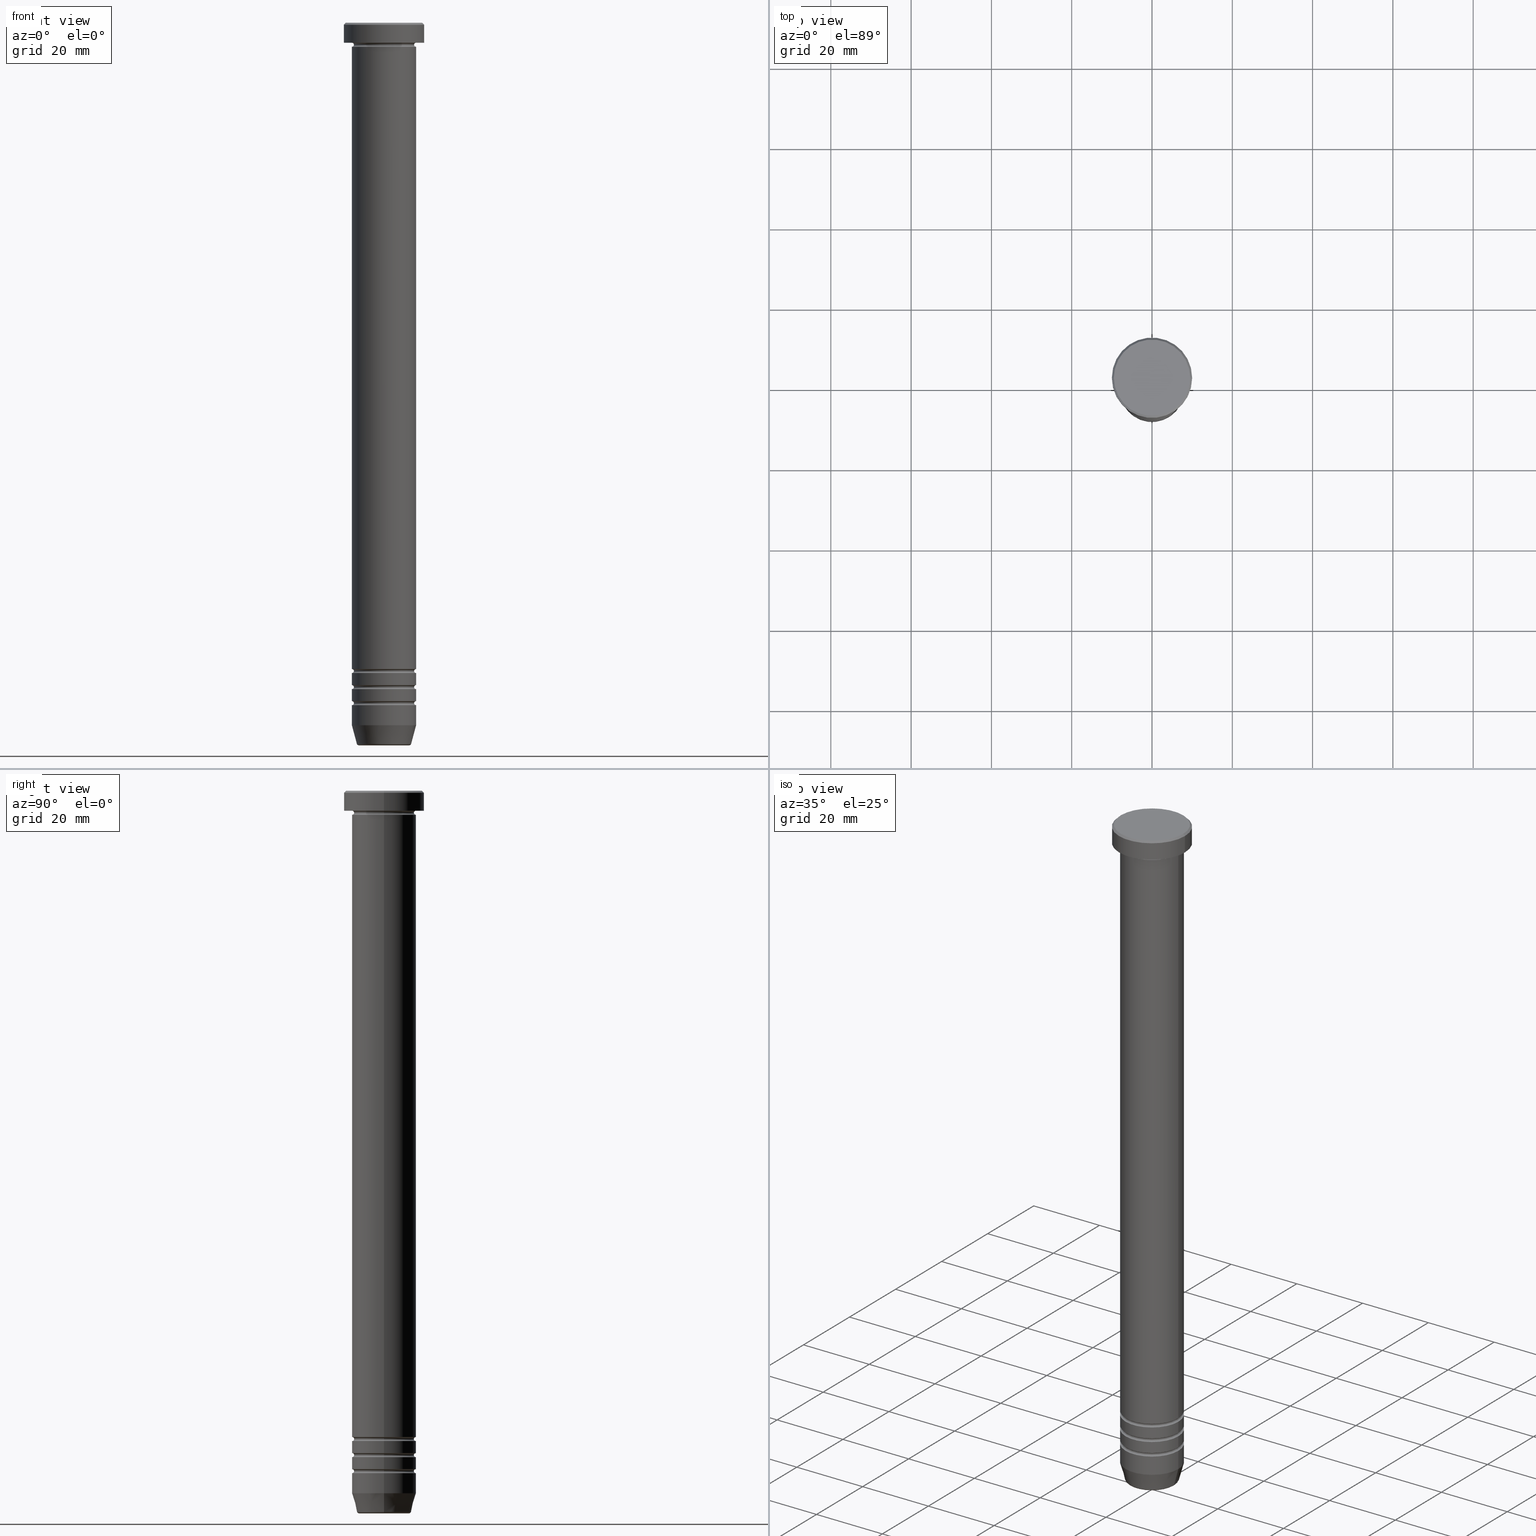
[diagram: canonical four-view strip — front | top / right | iso, engineering-drawing reading convention]
A machine part, canonical four-view strip (front | top / right | iso — engineering-drawing reading convention). The complete STEP part file that produces these views, byte-faithful:
ISO-10303-21;
HEADER;
FILE_DESCRIPTION (( 'STEP AP203' ),
    '1' );
FILE_NAME ('8cff.STEP',
    '2024-01-02T23:02:44',
    ( '' ),
    ( '' ),
    'SwSTEP 2.0',
    'SolidWorks 2019',
    '' );
FILE_SCHEMA (( 'CONFIG_CONTROL_DESIGN' ));
ENDSEC;

DATA;
#1 = ADVANCED_FACE ( 'NONE', ( #646 ), #293, .F. ) ;
#2 = CARTESIAN_POINT ( 'NONE',  ( -7.999999999999994671, 9.797174393178819741E-16, -169.5000000000000284 ) ) ;
#3 = EDGE_LOOP ( 'NONE', ( #555, #680, #749, #484 ) ) ;
#4 = ORIENTED_EDGE ( 'NONE', *, *, #354, .F. ) ;
#5 = PLANE ( 'NONE',  #608 ) ;
#6 = DIRECTION ( 'NONE',  ( -1.000000000000000000, 1.224646799147353454E-16, 0.000000000000000000 ) ) ;
#7 = CARTESIAN_POINT ( 'NONE',  ( 0.000000000000000000, 0.000000000000000000, -166.0000000000000284 ) ) ;
#8 = ADVANCED_BREP_SHAPE_REPRESENTATION ( '8cff', ( #982, #623, #127 ), #192 ) ;
#9 = ORIENTED_EDGE ( 'NONE', *, *, #174, .T. ) ;
#10 = EDGE_CURVE ( 'NONE', #385, #792, #885, .T. ) ;
#11 = CYLINDRICAL_SURFACE ( 'NONE', #40, 7.999999999999996447 ) ;
#12 = AXIS2_PLACEMENT_3D ( 'NONE', #886, #81, #720 ) ;
#13 = DIRECTION ( 'NONE',  ( 1.000000000000000000, 0.000000000000000000, 0.000000000000000000 ) ) ;
#14 = CIRCLE ( 'NONE', #724, 0.5000000000000004441 ) ;
#15 = ORIENTED_EDGE ( 'NONE', *, *, #543, .T. ) ;
#16 = LOCAL_TIME ( 0, 2, 44.00000000000000000, #782 ) ;
#17 = AXIS2_PLACEMENT_3D ( 'NONE', #583, #241, #818 ) ;
#18 = ORIENTED_EDGE ( 'NONE', *, *, #935, .T. ) ;
#19 = EDGE_CURVE ( 'NONE', #185, #112, #368, .T. ) ;
#20 = DIRECTION ( 'NONE',  ( -0.000000000000000000, -0.000000000000000000, 1.000000000000000000 ) ) ;
#21 = EDGE_LOOP ( 'NONE', ( #463, #450, #361, #718 ) ) ;
#22 = LINE ( 'NONE', #261, #150 ) ;
#23 = ORIENTED_EDGE ( 'NONE', *, *, #343, .T. ) ;
#24 = ORIENTED_EDGE ( 'NONE', *, *, #995, .F. ) ;
#25 = CARTESIAN_POINT ( 'NONE',  ( 9.500000000000005329, 1.163414459189986274E-15, 0.000000000000000000 ) ) ;
#26 = ORIENTED_EDGE ( 'NONE', *, *, #489, .T. ) ;
#27 = EDGE_LOOP ( 'NONE', ( #854, #1005, #4, #821 ) ) ;
#28 = ORIENTED_EDGE ( 'NONE', *, *, #163, .T. ) ;
#29 = CARTESIAN_POINT ( 'NONE',  ( 0.000000000000000000, 0.000000000000000000, -165.5000000000000284 ) ) ;
#30 = APPLICATION_PROTOCOL_DEFINITION ( 'international standard', 'config_control_design', 1994, #1041 ) ;
#31 = EDGE_LOOP ( 'NONE', ( #771, #686 ) ) ;
#32 = DIRECTION ( 'NONE',  ( -0.000000000000000000, -0.000000000000000000, 1.000000000000000000 ) ) ;
#33 = ORIENTED_EDGE ( 'NONE', *, *, #347, .T. ) ;
#34 = DIRECTION ( 'NONE',  ( 0.000000000000000000, 0.000000000000000000, -1.000000000000000000 ) ) ;
#35 = APPROVAL ( #856, 'NEUR�EN�' ) ;
#36 = EDGE_CURVE ( 'NONE', #954, #1056, #559, .T. ) ;
#37 = EDGE_LOOP ( 'NONE', ( #707, #582, #105, #536 ) ) ;
#38 = CARTESIAN_POINT ( 'NONE',  ( 0.000000000000000000, 0.000000000000000000, -5.500000000000000000 ) ) ;
#39 = TOROIDAL_SURFACE ( 'NONE', #470, 7.999999999999994671, 0.5000000000000000000 ) ;
#40 = AXIS2_PLACEMENT_3D ( 'NONE', #993, #258, #92 ) ;
#41 = CARTESIAN_POINT ( 'NONE',  ( -7.999999999999992895, 9.797174393178819741E-16, -169.0000000000000284 ) ) ;
#42 = DIRECTION ( 'NONE',  ( -0.000000000000000000, -0.000000000000000000, 1.000000000000000000 ) ) ;
#43 = COORDINATED_UNIVERSAL_TIME_OFFSET ( 1, 0, .AHEAD. ) ;
#44 = ORIENTED_EDGE ( 'NONE', *, *, #36, .T. ) ;
#45 = DIRECTION ( 'NONE',  ( 0.000000000000000000, 0.000000000000000000, -1.000000000000000000 ) ) ;
#46 = DIRECTION ( 'NONE',  ( 1.000000000000000000, 0.000000000000000000, 0.000000000000000000 ) ) ;
#47 = CALENDAR_DATE ( 2024, 3, 1 ) ;
#48 = ADVANCED_FACE ( 'NONE', ( #998 ), #1017, .T. ) ;
#49 = CARTESIAN_POINT ( 'NONE',  ( 8.000000000000000000, 0.000000000000000000, -5.500000000000000000 ) ) ;
#50 = DIRECTION ( 'NONE',  ( 0.000000000000000000, 0.000000000000000000, -1.000000000000000000 ) ) ;
#51 = CARTESIAN_POINT ( 'NONE',  ( 0.000000000000000000, 0.000000000000000000, -165.5000000000000284 ) ) ;
#52 = PERSON_AND_ORGANIZATION ( #505, #332 ) ;
#53 = ORIENTED_EDGE ( 'NONE', *, *, #161, .F. ) ;
#54 = AXIS2_PLACEMENT_3D ( 'NONE', #930, #202, #367 ) ;
#55 = AXIS2_PLACEMENT_3D ( 'NONE', #748, #188, #200 ) ;
#56 = ORIENTED_EDGE ( 'NONE', *, *, #876, .T. ) ;
#57 = CC_DESIGN_PERSON_AND_ORGANIZATION_ASSIGNMENT ( #125, #1043, ( #725 ) ) ;
#58 = CARTESIAN_POINT ( 'NONE',  ( -7.999999999999998224, 9.797174393178823685E-16, -165.0000000000000000 ) ) ;
#59 = ORIENTED_EDGE ( 'NONE', *, *, #702, .F. ) ;
#60 = DIRECTION ( 'NONE',  ( 1.000000000000000000, 0.000000000000000000, 0.000000000000000000 ) ) ;
#61 = PERSON_AND_ORGANIZATION_ROLE ( 'creator' ) ;
#62 = ORIENTED_EDGE ( 'NONE', *, *, #414, .T. ) ;
#63 = ORIENTED_EDGE ( 'NONE', *, *, #168, .T. ) ;
#64 = CARTESIAN_POINT ( 'NONE',  ( -7.999999999999996447, 9.797174393178821713E-16, 0.000000000000000000 ) ) ;
#65 = CARTESIAN_POINT ( 'NONE',  ( -8.000000000000000000, 9.797174393178825657E-16, -6.000000000000000000 ) ) ;
#66 = EDGE_LOOP ( 'NONE', ( #828, #836, #568, #269 ) ) ;
#67 = ORIENTED_EDGE ( 'NONE', *, *, #829, .T. ) ;
#68 = CARTESIAN_POINT ( 'NONE',  ( -8.000000000000000000, 9.797174393178825657E-16, -5.500000000000000000 ) ) ;
#69 = EDGE_CURVE ( 'NONE', #248, #298, #460, .T. ) ;
#70 = AXIS2_PLACEMENT_3D ( 'NONE', #1054, #868, #160 ) ;
#71 = AXIS2_PLACEMENT_3D ( 'NONE', #501, #1000, #822 ) ;
#72 = ADVANCED_FACE ( 'NONE', ( #546 ), #700, .T. ) ;
#73 = CARTESIAN_POINT ( 'NONE',  ( 0.000000000000000000, 0.000000000000000000, -169.0000000000000284 ) ) ;
#74 = CIRCLE ( 'NONE', #17, 8.000000000000000000 ) ;
#75 = ADVANCED_FACE ( 'NONE', ( #651 ), #610, .T. ) ;
#76 = ORIENTED_EDGE ( 'NONE', *, *, #297, .F. ) ;
#77 = ORIENTED_EDGE ( 'NONE', *, *, #614, .T. ) ;
#78 = DIRECTION ( 'NONE',  ( -0.000000000000000000, -0.000000000000000000, 1.000000000000000000 ) ) ;
#79 = DIRECTION ( 'NONE',  ( -0.000000000000000000, -0.000000000000000000, 1.000000000000000000 ) ) ;
#80 = ORIENTED_EDGE ( 'NONE', *, *, #347, .F. ) ;
#81 = DIRECTION ( 'NONE',  ( 0.000000000000000000, -1.000000000000000000, 0.000000000000000000 ) ) ;
#82 = PRODUCT_DEFINITION_SHAPE ( 'NONE', 'NONE',  #628 ) ;
#83 = ORIENTED_EDGE ( 'NONE', *, *, #383, .T. ) ;
#84 = CYLINDRICAL_SURFACE ( 'NONE', #235, 8.000000000000000000 ) ;
#85 = ORIENTED_EDGE ( 'NONE', *, *, #500, .T. ) ;
#86 = AXIS2_PLACEMENT_3D ( 'NONE', #682, #345, #209 ) ;
#87 = DIRECTION ( 'NONE',  ( -1.000000000000000000, 0.000000000000000000, -0.000000000000000000 ) ) ;
#88 = CARTESIAN_POINT ( 'NONE',  ( -6.276590543854911886, 7.686606519090462817E-16, -179.5000000000000000 ) ) ;
#89 = CIRCLE ( 'NONE', #70, 6.276590543854911886 ) ;
#90 = DIRECTION ( 'NONE',  ( -0.000000000000000000, -0.000000000000000000, 1.000000000000000000 ) ) ;
#91 = ORIENTED_EDGE ( 'NONE', *, *, #354, .T. ) ;
#92 = DIRECTION ( 'NONE',  ( 1.000000000000000000, 0.000000000000000000, 0.000000000000000000 ) ) ;
#93 = FACE_OUTER_BOUND ( 'NONE', #477, .T. ) ;
#94 = EDGE_CURVE ( 'NONE', #337, #840, #22, .T. ) ;
#95 = CARTESIAN_POINT ( 'NONE',  ( 0.000000000000000000, 0.000000000000000000, -161.5000000000000284 ) ) ;
#96 = EDGE_CURVE ( 'NONE', #551, #322, #356, .T. ) ;
#97 = ORIENTED_EDGE ( 'NONE', *, *, #260, .F. ) ;
#98 = DIRECTION ( 'NONE',  ( 1.000000000000000000, 0.000000000000000000, 0.000000000000000000 ) ) ;
#99 = DIRECTION ( 'NONE',  ( -1.000000000000000000, 0.000000000000000000, 0.000000000000000000 ) ) ;
#100 = DIRECTION ( 'NONE',  ( 0.000000000000000000, 0.000000000000000000, -1.000000000000000000 ) ) ;
#101 = CARTESIAN_POINT ( 'NONE',  ( -7.999999999999994671, 0.000000000000000000, -169.5000000000000284 ) ) ;
#102 = TOROIDAL_SURFACE ( 'NONE', #865, 7.999999999999994671, 0.5000000000000000000 ) ;
#103 = DIRECTION ( 'NONE',  ( 0.000000000000000000, 0.000000000000000000, -1.000000000000000000 ) ) ;
#104 = CC_DESIGN_APPROVAL ( #406, ( #628 ) ) ;
#105 = ORIENTED_EDGE ( 'NONE', *, *, #19, .T. ) ;
#106 = VECTOR ( 'NONE', #416, 1000.000000000000000 ) ;
#107 = AXIS2_PLACEMENT_3D ( 'NONE', #342, #1007, #666 ) ;
#108 = CARTESIAN_POINT ( 'NONE',  ( 0.000000000000000000, 0.000000000000000000, 0.000000000000000000 ) ) ;
#109 = AXIS2_PLACEMENT_3D ( 'NONE', #1015, #374, #773 ) ;
#110 = CARTESIAN_POINT ( 'NONE',  ( -7.500000000000000000, 9.491012693391985815E-16, -5.500000000000000000 ) ) ;
#111 = CARTESIAN_POINT ( 'NONE',  ( 0.000000000000000000, 0.000000000000000000, 0.000000000000000000 ) ) ;
#112 = VERTEX_POINT ( 'NONE', #587 ) ;
#113 = DIRECTION ( 'NONE',  ( -1.000000000000000000, 0.000000000000000000, 0.000000000000000000 ) ) ;
#114 = VERTEX_POINT ( 'NONE', #407 ) ;
#115 = DIRECTION ( 'NONE',  ( 0.000000000000000000, 0.000000000000000000, -1.000000000000000000 ) ) ;
#116 = ADVANCED_FACE ( 'NONE', ( #906 ), #626, .F. ) ;
#117 = ORIENTED_EDGE ( 'NONE', *, *, #791, .F. ) ;
#118 = DIRECTION ( 'NONE',  ( -0.000000000000000000, -0.000000000000000000, 1.000000000000000000 ) ) ;
#119 = ORIENTED_EDGE ( 'NONE', *, *, #156, .T. ) ;
#120 = DIRECTION ( 'NONE',  ( -0.000000000000000000, -0.000000000000000000, 1.000000000000000000 ) ) ;
#121 = CARTESIAN_POINT ( 'NONE',  ( 0.000000000000000000, 0.000000000000000000, -5.500000000000000000 ) ) ;
#122 = ORIENTED_EDGE ( 'NONE', *, *, #529, .F. ) ;
#123 = EDGE_CURVE ( 'NONE', #1056, #991, #386, .T. ) ;
#124 = CARTESIAN_POINT ( 'NONE',  ( 7.999999999999994671, 9.797174393178819741E-16, -165.5000000000000284 ) ) ;
#125 = PERSON_AND_ORGANIZATION ( #505, #332 ) ;
#126 = AXIS2_PLACEMENT_3D ( 'NONE', #652, #167, #640 ) ;
#127 = AXIS2_PLACEMENT_3D ( 'NONE', #256, #581, #1008 ) ;
#128 = TOROIDAL_SURFACE ( 'NONE', #763, 7.999999999999994671, 0.5000000000000000000 ) ;
#129 = VECTOR ( 'NONE', #440, 1000.000000000000000 ) ;
#130 = LINE ( 'NONE', #274, #809 ) ;
#131 = DIRECTION ( 'NONE',  ( -1.000000000000000000, -1.224646799147353454E-16, 0.000000000000000000 ) ) ;
#132 = DIRECTION ( 'NONE',  ( -0.000000000000000000, -0.000000000000000000, 1.000000000000000000 ) ) ;
#133 = PERSON_AND_ORGANIZATION ( #505, #332 ) ;
#134 = ORIENTED_EDGE ( 'NONE', *, *, #842, .F. ) ;
#135 = FACE_OUTER_BOUND ( 'NONE', #27, .T. ) ;
#136 = DIRECTION ( 'NONE',  ( 1.000000000000000000, 0.000000000000000000, 0.000000000000000000 ) ) ;
#137 = PRODUCT_RELATED_PRODUCT_CATEGORY ( 'detail', '', ( #240 ) ) ;
#138 = EDGE_CURVE ( 'NONE', #991, #1056, #697, .T. ) ;
#139 = VERTEX_POINT ( 'NONE', #896 ) ;
#140 = CARTESIAN_POINT ( 'NONE',  ( 0.000000000000000000, 0.000000000000000000, -169.0000000000000284 ) ) ;
#141 = CARTESIAN_POINT ( 'NONE',  ( -7.999999999999994671, 9.797174393178819741E-16, -165.5000000000000284 ) ) ;
#142 = CARTESIAN_POINT ( 'NONE',  ( 0.000000000000000000, 0.000000000000000000, -180.0000000000000000 ) ) ;
#143 = PERSON_AND_ORGANIZATION_ROLE ( 'classification_officer' ) ;
#144 = CIRCLE ( 'NONE', #54, 7.999999999999998224 ) ;
#145 = APPROVAL_PERSON_ORGANIZATION ( #220, #406, #455 ) ;
#146 = ORIENTED_EDGE ( 'NONE', *, *, #702, .T. ) ;
#147 = CARTESIAN_POINT ( 'NONE',  ( 0.000000000000000000, 0.000000000000000000, -5.500000000000000000 ) ) ;
#148 = AXIS2_PLACEMENT_3D ( 'NONE', #254, #509, #755 ) ;
#149 = CYLINDRICAL_SURFACE ( 'NONE', #878, 8.000000000000000000 ) ;
#150 = VECTOR ( 'NONE', #415, 1000.000000000000114 ) ;
#151 = DIRECTION ( 'NONE',  ( -0.000000000000000000, -0.000000000000000000, 1.000000000000000000 ) ) ;
#152 = EDGE_CURVE ( 'NONE', #112, #417, #304, .T. ) ;
#153 = ORIENTED_EDGE ( 'NONE', *, *, #476, .F. ) ;
#154 = VERTEX_POINT ( 'NONE', #746 ) ;
#155 = DIRECTION ( 'NONE',  ( 0.000000000000000000, -1.000000000000000000, 0.000000000000000000 ) ) ;
#156 = EDGE_CURVE ( 'NONE', #940, #114, #490, .T. ) ;
#157 = VERTEX_POINT ( 'NONE', #823 ) ;
#158 = AXIS2_PLACEMENT_3D ( 'NONE', #688, #1026, #635 ) ;
#159 = CIRCLE ( 'NONE', #740, 8.000000000000000000 ) ;
#160 = DIRECTION ( 'NONE',  ( 1.000000000000000000, 0.000000000000000000, 0.000000000000000000 ) ) ;
#161 = EDGE_CURVE ( 'NONE', #786, #441, #881, .T. ) ;
#162 = TOROIDAL_SURFACE ( 'NONE', #698, 7.999999999999994671, 0.5000000000000000000 ) ;
#163 = EDGE_CURVE ( 'NONE', #604, #975, #403, .T. ) ;
#164 = FACE_OUTER_BOUND ( 'NONE', #564, .T. ) ;
#165 = VERTEX_POINT ( 'NONE', #902 ) ;
#166 = DIRECTION ( 'NONE',  ( 0.000000000000000000, 0.000000000000000000, -1.000000000000000000 ) ) ;
#167 = DIRECTION ( 'NONE',  ( 0.000000000000000000, -1.000000000000000000, 0.000000000000000000 ) ) ;
#168 = EDGE_CURVE ( 'NONE', #303, #535, #316, .T. ) ;
#169 = EDGE_LOOP ( 'NONE', ( #494, #862, #380, #15 ) ) ;
#170 = CARTESIAN_POINT ( 'NONE',  ( 0.000000000000000000, 0.000000000000000000, -161.5000000000000284 ) ) ;
#171 = DIRECTION ( 'NONE',  ( -0.000000000000000000, -0.000000000000000000, 1.000000000000000000 ) ) ;
#172 = ORIENTED_EDGE ( 'NONE', *, *, #829, .F. ) ;
#173 = ORIENTED_EDGE ( 'NONE', *, *, #842, .T. ) ;
#174 = EDGE_CURVE ( 'NONE', #632, #337, #798, .T. ) ;
#175 = AXIS2_PLACEMENT_3D ( 'NONE', #247, #952, #399 ) ;
#176 = CARTESIAN_POINT ( 'NONE',  ( 0.000000000000000000, 0.000000000000000000, -5.500000000000000000 ) ) ;
#177 = AXIS2_PLACEMENT_3D ( 'NONE', #68, #306, #218 ) ;
#178 = VERTEX_POINT ( 'NONE', #323 ) ;
#179 = CARTESIAN_POINT ( 'NONE',  ( 7.999999999999996447, 0.000000000000000000, 0.000000000000000000 ) ) ;
#180 = EDGE_LOOP ( 'NONE', ( #263, #372, #565, #153 ) ) ;
#181 = CARTESIAN_POINT ( 'NONE',  ( 0.000000000000000000, 0.000000000000000000, -161.5000000000000284 ) ) ;
#182 = ADVANCED_FACE ( 'NONE', ( #93 ), #661, .F. ) ;
#183 = CARTESIAN_POINT ( 'NONE',  ( 0.000000000000000000, 0.000000000000000000, -5.000000000000000000 ) ) ;
#184 = MECHANICAL_CONTEXT ( 'NONE', #1041, 'mechanical' ) ;
#185 = VERTEX_POINT ( 'NONE', #815 ) ;
#186 = CARTESIAN_POINT ( 'NONE',  ( 0.000000000000000000, -1.734723475976807094E-15, -30.00000000000000000 ) ) ;
#187 = CARTESIAN_POINT ( 'NONE',  ( 0.000000000000000000, 1.592040838891559450E-14, -180.0000000000000000 ) ) ;
#188 = DIRECTION ( 'NONE',  ( -0.000000000000000000, -0.000000000000000000, 1.000000000000000000 ) ) ;
#189 = DIRECTION ( 'NONE',  ( -0.000000000000000000, -1.000000000000000000, -0.000000000000000000 ) ) ;
#190 = AXIS2_PLACEMENT_3D ( 'NONE', #181, #20, #1060 ) ;
#191 = DIRECTION ( 'NONE',  ( -0.000000000000000000, -0.000000000000000000, 1.000000000000000000 ) ) ;
#192 =( GEOMETRIC_REPRESENTATION_CONTEXT ( 3 ) GLOBAL_UNCERTAINTY_ASSIGNED_CONTEXT ( ( #679 ) ) GLOBAL_UNIT_ASSIGNED_CONTEXT ( ( #667, #816, #589 ) ) REPRESENTATION_CONTEXT ( 'NONE', 'WORKASPACE' ) );
#193 = EDGE_LOOP ( 'NONE', ( #534, #907, #519, #53 ) ) ;
#194 = CARTESIAN_POINT ( 'NONE',  ( 8.000000000000000000, 9.797174393178825657E-16, -4.999999999999999112 ) ) ;
#195 = CARTESIAN_POINT ( 'NONE',  ( 8.000000000000000000, 0.000000000000000000, -30.00000000000000000 ) ) ;
#196 = DIRECTION ( 'NONE',  ( 0.000000000000000000, 0.000000000000000000, -1.000000000000000000 ) ) ;
#197 = ADVANCED_FACE ( 'NONE', ( #671 ), #957, .T. ) ;
#198 = DIRECTION ( 'NONE',  ( 1.000000000000000000, 0.000000000000000000, 0.000000000000000000 ) ) ;
#199 = FACE_OUTER_BOUND ( 'NONE', #471, .T. ) ;
#200 = DIRECTION ( 'NONE',  ( -1.000000000000000000, 0.000000000000000000, 0.000000000000000000 ) ) ;
#201 = ORIENTED_EDGE ( 'NONE', *, *, #231, .T. ) ;
#202 = DIRECTION ( 'NONE',  ( -0.000000000000000000, -0.000000000000000000, 1.000000000000000000 ) ) ;
#203 = CIRCLE ( 'NONE', #335, 7.499999999999995559 ) ;
#204 = DATE_AND_TIME ( #47, #252 ) ;
#205 = CIRCLE ( 'NONE', #779, 9.500000000000005329 ) ;
#206 = AXIS2_PLACEMENT_3D ( 'NONE', #803, #171, #394 ) ;
#207 = CIRCLE ( 'NONE', #830, 6.759553456999437770 ) ;
#208 = CIRCLE ( 'NONE', #225, 8.000000000000000000 ) ;
#209 = DIRECTION ( 'NONE',  ( 1.000000000000000000, 0.000000000000000000, 0.000000000000000000 ) ) ;
#210 = CARTESIAN_POINT ( 'NONE',  ( -8.000000000000000000, 9.797174393178825657E-16, 0.000000000000000000 ) ) ;
#211 = DATE_TIME_ROLE ( 'creation_date' ) ;
#212 = ORIENTED_EDGE ( 'NONE', *, *, #366, .T. ) ;
#213 = CYLINDRICAL_SURFACE ( 'NONE', #454, 7.999999999999996447 ) ;
#214 = DIRECTION ( 'NONE',  ( -0.000000000000000000, -0.000000000000000000, 1.000000000000000000 ) ) ;
#215 = ORIENTED_EDGE ( 'NONE', *, *, #1002, .F. ) ;
#216 = ORIENTED_EDGE ( 'NONE', *, *, #174, .F. ) ;
#217 = CARTESIAN_POINT ( 'NONE',  ( -9.500000000000005329, 0.000000000000000000, 0.000000000000000000 ) ) ;
#218 = DIRECTION ( 'NONE',  ( -1.000000000000000000, 1.224646799147353454E-16, 0.000000000000000000 ) ) ;
#219 = ORIENTED_EDGE ( 'NONE', *, *, #10, .F. ) ;
#220 = PERSON_AND_ORGANIZATION ( #505, #332 ) ;
#221 = AXIS2_PLACEMENT_3D ( 'NONE', #511, #520, #598 ) ;
#222 = CC_DESIGN_DATE_AND_TIME_ASSIGNMENT ( #615, #211, ( #628 ) ) ;
#223 = CIRCLE ( 'NONE', #107, 8.000000000000000000 ) ;
#224 = EDGE_CURVE ( 'NONE', #298, #248, #223, .T. ) ;
#225 = AXIS2_PLACEMENT_3D ( 'NONE', #948, #214, #60 ) ;
#226 = DIRECTION ( 'NONE',  ( 1.000000000000000000, 0.000000000000000000, 0.000000000000000000 ) ) ;
#227 = DIRECTION ( 'NONE',  ( 0.000000000000000000, 0.000000000000000000, -1.000000000000000000 ) ) ;
#228 = CARTESIAN_POINT ( 'NONE',  ( 0.000000000000000000, 0.000000000000000000, -161.5000000000000284 ) ) ;
#229 = ORIENTED_EDGE ( 'NONE', *, *, #163, .F. ) ;
#230 = CARTESIAN_POINT ( 'NONE',  ( -10.00000000000000000, 1.224646799147353256E-15, -0.4999999999999987232 ) ) ;
#231 = EDGE_CURVE ( 'NONE', #337, #940, #207, .T. ) ;
#232 = EDGE_CURVE ( 'NONE', #630, #1056, #810, .T. ) ;
#233 = LINE ( 'NONE', #64, #711 ) ;
#234 = AXIS2_PLACEMENT_3D ( 'NONE', #563, #733, #974 ) ;
#235 = AXIS2_PLACEMENT_3D ( 'NONE', #325, #647, #1055 ) ;
#236 = DIRECTION ( 'NONE',  ( 1.000000000000000000, 0.000000000000000000, 0.000000000000000000 ) ) ;
#237 = TOROIDAL_SURFACE ( 'NONE', #355, 7.999999999999994671, 0.5000000000000000000 ) ;
#238 = EDGE_CURVE ( 'NONE', #178, #248, #275, .T. ) ;
#239 = DIRECTION ( 'NONE',  ( -0.000000000000000000, -0.000000000000000000, 1.000000000000000000 ) ) ;
#240 = PRODUCT ( '8cff', '8cff', '', ( #184 ) ) ;
#241 = DIRECTION ( 'NONE',  ( -0.000000000000000000, -0.000000000000000000, 1.000000000000000000 ) ) ;
#242 = ADVANCED_FACE ( 'NONE', ( #943 ), #1011, .T. ) ;
#243 = CARTESIAN_POINT ( 'NONE',  ( 0.000000000000000000, 0.000000000000000000, -175.0000000000000284 ) ) ;
#244 = DIRECTION ( 'NONE',  ( -0.000000000000000000, -0.000000000000000000, 1.000000000000000000 ) ) ;
#245 = CARTESIAN_POINT ( 'NONE',  ( 0.000000000000000000, 0.000000000000000000, -169.5000000000000284 ) ) ;
#246 = ORIENTED_EDGE ( 'NONE', *, *, #876, .F. ) ;
#247 = CARTESIAN_POINT ( 'NONE',  ( 0.000000000000000000, 0.000000000000000000, -0.4999999999999987232 ) ) ;
#248 = VERTEX_POINT ( 'NONE', #195 ) ;
#249 = ADVANCED_FACE ( 'NONE', ( #512 ), #128, .F. ) ;
#250 = TOROIDAL_SURFACE ( 'NONE', #330, 7.999999999999994671, 0.5000000000000000000 ) ;
#251 = DIRECTION ( 'NONE',  ( 0.000000000000000000, 0.000000000000000000, -1.000000000000000000 ) ) ;
#252 = LOCAL_TIME ( 0, 2, 44.00000000000000000, #949 ) ;
#253 = AXIS2_PLACEMENT_3D ( 'NONE', #328, #819, #99 ) ;
#254 = CARTESIAN_POINT ( 'NONE',  ( 0.000000000000000000, 0.000000000000000000, -6.000000000000000000 ) ) ;
#255 = CIRCLE ( 'NONE', #387, 7.999999999999992895 ) ;
#256 = CARTESIAN_POINT ( 'NONE',  ( 0.000000000000000000, 0.000000000000000000, 0.000000000000000000 ) ) ;
#257 = EDGE_LOOP ( 'NONE', ( #793, #715, #863, #1016 ) ) ;
#258 = DIRECTION ( 'NONE',  ( -0.000000000000000000, -0.000000000000000000, 1.000000000000000000 ) ) ;
#259 = EDGE_CURVE ( 'NONE', #954, #265, #726, .T. ) ;
#260 = EDGE_CURVE ( 'NONE', #178, #165, #422, .T. ) ;
#261 = CARTESIAN_POINT ( 'NONE',  ( -6.660254037844388186, 8.156458788954364706E-16, -180.0000000000000000 ) ) ;
#262 = LINE ( 'NONE', #25, #712 ) ;
#263 = ORIENTED_EDGE ( 'NONE', *, *, #614, .F. ) ;
#264 = CARTESIAN_POINT ( 'NONE',  ( -6.276590543854911886, 7.982336011935132188E-16, -180.0000000000000000 ) ) ;
#265 = VERTEX_POINT ( 'NONE', #286 ) ;
#266 = DIRECTION ( 'NONE',  ( -1.000000000000000000, 0.000000000000000000, 0.000000000000000000 ) ) ;
#267 = EDGE_CURVE ( 'NONE', #265, #441, #517, .T. ) ;
#268 = EDGE_CURVE ( 'NONE', #551, #392, #523, .T. ) ;
#269 = ORIENTED_EDGE ( 'NONE', *, *, #238, .F. ) ;
#270 = DIRECTION ( 'NONE',  ( -0.000000000000000000, -1.000000000000000000, -0.000000000000000000 ) ) ;
#271 = CIRCLE ( 'NONE', #351, 0.5000000000000004441 ) ;
#272 = CARTESIAN_POINT ( 'NONE',  ( 0.000000000000000000, 0.000000000000000000, -179.6294095225512422 ) ) ;
#273 = DIRECTION ( 'NONE',  ( -0.000000000000000000, -0.000000000000000000, 1.000000000000000000 ) ) ;
#274 = CARTESIAN_POINT ( 'NONE',  ( -7.999999999999996447, 9.797174393178821713E-16, 0.000000000000000000 ) ) ;
#275 = LINE ( 'NONE', #528, #728 ) ;
#276 = ORIENTED_EDGE ( 'NONE', *, *, #297, .T. ) ;
#277 = DIRECTION ( 'NONE',  ( -0.000000000000000000, -0.000000000000000000, 1.000000000000000000 ) ) ;
#278 = ORIENTED_EDGE ( 'NONE', *, *, #516, .F. ) ;
#279 = EDGE_CURVE ( 'NONE', #954, #786, #606, .T. ) ;
#280 = DIRECTION ( 'NONE',  ( -1.000000000000000000, 0.000000000000000000, 0.000000000000000000 ) ) ;
#281 = DIRECTION ( 'NONE',  ( -1.224646799147353207E-16, 1.000000000000000000, 0.000000000000000000 ) ) ;
#282 = DIRECTION ( 'NONE',  ( 1.000000000000000000, 0.000000000000000000, 0.000000000000000000 ) ) ;
#283 = DATE_AND_TIME ( #609, #472 ) ;
#284 = DIRECTION ( 'NONE',  ( -0.000000000000000000, -0.000000000000000000, 1.000000000000000000 ) ) ;
#285 = ORIENTED_EDGE ( 'NONE', *, *, #489, .F. ) ;
#286 = CARTESIAN_POINT ( 'NONE',  ( 7.999999999999998224, 0.000000000000000000, -165.0000000000000000 ) ) ;
#287 = AXIS2_PLACEMENT_3D ( 'NONE', #631, #78, #558 ) ;
#288 = DATE_AND_TIME ( #620, #486 ) ;
#289 = AXIS2_PLACEMENT_3D ( 'NONE', #2, #899, #1053 ) ;
#290 = TOROIDAL_SURFACE ( 'NONE', #656, 7.999999999999994671, 0.5000000000000000000 ) ;
#291 = EDGE_LOOP ( 'NONE', ( #346, #621, #85, #784 ) ) ;
#292 = FACE_OUTER_BOUND ( 'NONE', #21, .T. ) ;
#293 = TOROIDAL_SURFACE ( 'NONE', #769, 8.000000000000000000, 0.5000000000000000000 ) ;
#294 = CARTESIAN_POINT ( 'NONE',  ( -10.00000000000000000, 1.224646799147353256E-15, -5.000000000000000000 ) ) ;
#295 = CYLINDRICAL_SURFACE ( 'NONE', #897, 10.00000000000000000 ) ;
#296 = EDGE_CURVE ( 'NONE', #669, #185, #521, .T. ) ;
#297 = EDGE_CURVE ( 'NONE', #441, #786, #659, .T. ) ;
#298 = VERTEX_POINT ( 'NONE', #448 ) ;
#299 = ADVANCED_FACE ( 'NONE', ( #358 ), #369, .T. ) ;
#300 = EDGE_LOOP ( 'NONE', ( #28, #681 ) ) ;
#301 = DIRECTION ( 'NONE',  ( -0.000000000000000000, -0.000000000000000000, 1.000000000000000000 ) ) ;
#302 = TOROIDAL_SURFACE ( 'NONE', #221, 6.276590543854911886, 0.5000000000000000000 ) ;
#303 = VERTEX_POINT ( 'NONE', #1035 ) ;
#304 = CIRCLE ( 'NONE', #148, 8.000000000000000000 ) ;
#305 = CIRCLE ( 'NONE', #900, 0.5000000000000004441 ) ;
#306 = DIRECTION ( 'NONE',  ( 1.224646799147353207E-16, 1.000000000000000000, 0.000000000000000000 ) ) ;
#307 = EDGE_LOOP ( 'NONE', ( #33, #56, #1030, #134 ) ) ;
#308 = DIRECTION ( 'NONE',  ( -0.000000000000000000, -0.000000000000000000, 1.000000000000000000 ) ) ;
#309 = EDGE_LOOP ( 'NONE', ( #18, #77 ) ) ;
#310 = DIRECTION ( 'NONE',  ( 0.000000000000000000, 0.000000000000000000, -1.000000000000000000 ) ) ;
#311 = ORIENTED_EDGE ( 'NONE', *, *, #224, .T. ) ;
#312 = DIRECTION ( 'NONE',  ( -0.000000000000000000, -1.000000000000000000, -0.000000000000000000 ) ) ;
#313 = DIRECTION ( 'NONE',  ( 1.000000000000000000, 0.000000000000000000, 0.000000000000000000 ) ) ;
#314 = AXIS2_PLACEMENT_3D ( 'NONE', #1006, #687, #924 ) ;
#315 = AXIS2_PLACEMENT_3D ( 'NONE', #759, #600, #825 ) ;
#316 = CIRCLE ( 'NONE', #642, 7.500000000000000000 ) ;
#317 = FACE_OUTER_BOUND ( 'NONE', #616, .T. ) ;
#318 = CARTESIAN_POINT ( 'NONE',  ( 7.499999999999995559, 0.000000000000000000, -169.5000000000000284 ) ) ;
#319 = ORIENTED_EDGE ( 'NONE', *, *, #268, .F. ) ;
#320 = ORIENTED_EDGE ( 'NONE', *, *, #719, .T. ) ;
#321 = DIRECTION ( 'NONE',  ( 1.000000000000000000, 0.000000000000000000, 0.000000000000000000 ) ) ;
#322 = VERTEX_POINT ( 'NONE', #294 ) ;
#323 = CARTESIAN_POINT ( 'NONE',  ( 7.999999999999992895, 0.000000000000000000, -161.0000000000000284 ) ) ;
#324 = EDGE_CURVE ( 'NONE', #185, #669, #208, .T. ) ;
#325 = CARTESIAN_POINT ( 'NONE',  ( 0.000000000000000000, 0.000000000000000000, 0.000000000000000000 ) ) ;
#326 = ADVANCED_FACE ( 'NONE', ( #925 ), #162, .F. ) ;
#327 = DIRECTION ( 'NONE',  ( 0.000000000000000000, 0.000000000000000000, -1.000000000000000000 ) ) ;
#328 = CARTESIAN_POINT ( 'NONE',  ( 0.000000000000000000, 0.000000000000000000, -5.000000000000000000 ) ) ;
#329 = AXIS2_PLACEMENT_3D ( 'NONE', #953, #301, #236 ) ;
#330 = AXIS2_PLACEMENT_3D ( 'NONE', #946, #32, #198 ) ;
#331 = DIRECTION ( 'NONE',  ( 0.000000000000000000, 0.000000000000000000, -1.000000000000000000 ) ) ;
#332 = ORGANIZATION ( 'NEUR�EN�', 'NEUR�EN�', '' ) ;
#333 = AXIS2_PLACEMENT_3D ( 'NONE', #142, #619, #776 ) ;
#334 = CARTESIAN_POINT ( 'NONE',  ( 6.660254037844388186, 0.000000000000000000, -180.0000000000000000 ) ) ;
#335 = AXIS2_PLACEMENT_3D ( 'NONE', #466, #790, #388 ) ;
#336 = ADVANCED_FACE ( 'NONE', ( #199 ), #627, .F. ) ;
#337 = VERTEX_POINT ( 'NONE', #851 ) ;
#338 = EDGE_CURVE ( 'NONE', #401, #991, #542, .T. ) ;
#339 = FACE_OUTER_BOUND ( 'NONE', #845, .T. ) ;
#340 = ADVANCED_FACE ( 'NONE', ( #602 ), #364, .T. ) ;
#341 = EDGE_CURVE ( 'NONE', #962, #632, #89, .T. ) ;
#342 = CARTESIAN_POINT ( 'NONE',  ( 0.000000000000000000, 0.000000000000000000, -30.00000000000000000 ) ) ;
#343 = EDGE_CURVE ( 'NONE', #178, #154, #525, .T. ) ;
#344 = ORIENTED_EDGE ( 'NONE', *, *, #543, .F. ) ;
#345 = DIRECTION ( 'NONE',  ( 0.000000000000000000, 0.000000000000000000, -1.000000000000000000 ) ) ;
#346 = ORIENTED_EDGE ( 'NONE', *, *, #723, .F. ) ;
#347 = EDGE_CURVE ( 'NONE', #951, #684, #676, .T. ) ;
#348 = DIRECTION ( 'NONE',  ( 1.000000000000000000, 0.000000000000000000, 0.000000000000000000 ) ) ;
#349 = ORIENTED_EDGE ( 'NONE', *, *, #94, .F. ) ;
#350 = FACE_OUTER_BOUND ( 'NONE', #918, .T. ) ;
#351 = AXIS2_PLACEMENT_3D ( 'NONE', #459, #892, #967 ) ;
#352 = DIRECTION ( 'NONE',  ( -1.000000000000000000, 0.000000000000000000, 0.000000000000000000 ) ) ;
#353 = CIRCLE ( 'NONE', #827, 8.000000000000000000 ) ;
#354 = EDGE_CURVE ( 'NONE', #154, #139, #203, .T. ) ;
#355 = AXIS2_PLACEMENT_3D ( 'NONE', #228, #716, #1052 ) ;
#356 = CIRCLE ( 'NONE', #961, 10.00000000000000000 ) ;
#357 = CARTESIAN_POINT ( 'NONE',  ( -10.00000000000000000, 1.224646799147353256E-15, 0.000000000000000000 ) ) ;
#358 = FACE_OUTER_BOUND ( 'NONE', #66, .T. ) ;
#359 = APPROVAL_ROLE ( '' ) ;
#360 = ADVANCED_FACE ( 'NONE', ( #795 ), #149, .T. ) ;
#361 = ORIENTED_EDGE ( 'NONE', *, *, #844, .F. ) ;
#362 = DIRECTION ( 'NONE',  ( 0.000000000000000000, -1.000000000000000000, 0.000000000000000000 ) ) ;
#363 = CARTESIAN_POINT ( 'NONE',  ( 8.000000000000000000, 0.000000000000000000, 0.000000000000000000 ) ) ;
#364 = PLANE ( 'NONE',  #158 ) ;
#365 = ORIENTED_EDGE ( 'NONE', *, *, #469, .F. ) ;
#366 = EDGE_CURVE ( 'NONE', #303, #975, #813, .T. ) ;
#367 = DIRECTION ( 'NONE',  ( 1.000000000000000000, 0.000000000000000000, 0.000000000000000000 ) ) ;
#368 = LINE ( 'NONE', #363, #1036 ) ;
#369 = CYLINDRICAL_SURFACE ( 'NONE', #109, 7.999999999999996447 ) ;
#370 = CIRCLE ( 'NONE', #315, 7.500000000000000000 ) ;
#371 = AXIS2_PLACEMENT_3D ( 'NONE', #482, #567, #735 ) ;
#372 = ORIENTED_EDGE ( 'NONE', *, *, #995, .T. ) ;
#373 = CARTESIAN_POINT ( 'NONE',  ( 6.276590543854911886, 0.000000000000000000, -180.0000000000000000 ) ) ;
#374 = DIRECTION ( 'NONE',  ( -0.000000000000000000, -0.000000000000000000, 1.000000000000000000 ) ) ;
#375 = ADVANCED_FACE ( 'NONE', ( #710 ), #970, .T. ) ;
#376 = PERSON_AND_ORGANIZATION ( #505, #332 ) ;
#377 = ORIENTED_EDGE ( 'NONE', *, *, #476, .T. ) ;
#378 = ORIENTED_EDGE ( 'NONE', *, *, #138, .F. ) ;
#379 = CARTESIAN_POINT ( 'NONE',  ( 8.000000000000000000, 9.797174393178825657E-16, -5.500000000000000000 ) ) ;
#380 = ORIENTED_EDGE ( 'NONE', *, *, #268, .T. ) ;
#381 = DIRECTION ( 'NONE',  ( -1.000000000000000000, 0.000000000000000000, 0.000000000000000000 ) ) ;
#382 = DIRECTION ( 'NONE',  ( -1.224646799147353207E-16, 1.000000000000000000, 0.000000000000000000 ) ) ;
#383 = EDGE_CURVE ( 'NONE', #535, #417, #739, .T. ) ;
#384 = CC_DESIGN_SECURITY_CLASSIFICATION ( #938, ( #725 ) ) ;
#385 = VERTEX_POINT ( 'NONE', #959 ) ;
#386 = CIRCLE ( 'NONE', #1046, 7.499999999999995559 ) ;
#387 = AXIS2_PLACEMENT_3D ( 'NONE', #891, #244, #832 ) ;
#388 = DIRECTION ( 'NONE',  ( 1.000000000000000000, 0.000000000000000000, 0.000000000000000000 ) ) ;
#389 = DIRECTION ( 'NONE',  ( -0.000000000000000000, -0.000000000000000000, 1.000000000000000000 ) ) ;
#390 = FACE_OUTER_BOUND ( 'NONE', #169, .T. ) ;
#391 = ADVANCED_FACE ( 'NONE', ( #629 ), #237, .F. ) ;
#392 = VERTEX_POINT ( 'NONE', #787 ) ;
#393 = DIRECTION ( 'NONE',  ( 0.000000000000000000, -1.000000000000000000, 0.000000000000000000 ) ) ;
#394 = DIRECTION ( 'NONE',  ( 1.000000000000000000, 0.000000000000000000, 0.000000000000000000 ) ) ;
#395 = ORIENTED_EDGE ( 'NONE', *, *, #1051, .F. ) ;
#396 = DIRECTION ( 'NONE',  ( 1.000000000000000000, 0.000000000000000000, 0.000000000000000000 ) ) ;
#397 = DIRECTION ( 'NONE',  ( -1.000000000000000000, -1.224646799147353454E-16, 0.000000000000000000 ) ) ;
#398 = ORIENTED_EDGE ( 'NONE', *, *, #1051, .T. ) ;
#399 = DIRECTION ( 'NONE',  ( 1.000000000000000000, 0.000000000000000000, 0.000000000000000000 ) ) ;
#400 = TOROIDAL_SURFACE ( 'NONE', #190, 7.999999999999994671, 0.5000000000000000000 ) ;
#401 = VERTEX_POINT ( 'NONE', #548 ) ;
#402 = APPROVAL_PERSON_ORGANIZATION ( #788, #613, #526 ) ;
#403 = CIRCLE ( 'NONE', #253, 8.000000000000000000 ) ;
#404 = VECTOR ( 'NONE', #151, 1000.000000000000000 ) ;
#405 = DIRECTION ( 'NONE',  ( -1.000000000000000000, 1.224646799147353454E-16, 0.000000000000000000 ) ) ;
#406 = APPROVAL ( #462, 'NEUR�EN�' ) ;
#407 = CARTESIAN_POINT ( 'NONE',  ( 8.000000000000000000, 0.000000000000000000, -175.0000000000000284 ) ) ;
#408 = AXIS2_PLACEMENT_3D ( 'NONE', #833, #191, #1003 ) ;
#409 = DIRECTION ( 'NONE',  ( -0.000000000000000000, -0.000000000000000000, 1.000000000000000000 ) ) ;
#410 = ORIENTED_EDGE ( 'NONE', *, *, #443, .F. ) ;
#411 = FACE_OUTER_BOUND ( 'NONE', #751, .T. ) ;
#412 = DIRECTION ( 'NONE',  ( 0.000000000000000000, 0.000000000000000000, -1.000000000000000000 ) ) ;
#413 = CYLINDRICAL_SURFACE ( 'NONE', #764, 8.000000000000000000 ) ;
#414 = EDGE_CURVE ( 'NONE', #401, #630, #603, .T. ) ;
#415 = DIRECTION ( 'NONE',  ( -0.2588190451025215166, 3.169619151431774802E-17, 0.9659258262890679791 ) ) ;
#416 = DIRECTION ( 'NONE',  ( -0.000000000000000000, -0.000000000000000000, 1.000000000000000000 ) ) ;
#417 = VERTEX_POINT ( 'NONE', #65 ) ;
#418 = CIRCLE ( 'NONE', #796, 0.5000000000000004441 ) ;
#419 = CIRCLE ( 'NONE', #126, 0.5000000000000004441 ) ;
#420 = FACE_BOUND ( 'NONE', #300, .T. ) ;
#421 = DIRECTION ( 'NONE',  ( -1.000000000000000000, 0.000000000000000000, 0.000000000000000000 ) ) ;
#422 = CIRCLE ( 'NONE', #1048, 7.999999999999992895 ) ;
#423 = VERTEX_POINT ( 'NONE', #230 ) ;
#424 = AXIS2_PLACEMENT_3D ( 'NONE', #958, #50, #226 ) ;
#425 = ORIENTED_EDGE ( 'NONE', *, *, #296, .F. ) ;
#426 = ADVANCED_FACE ( 'NONE', ( #317 ), #290, .F. ) ;
#427 = DIRECTION ( 'NONE',  ( 1.000000000000000000, 0.000000000000000000, 0.000000000000000000 ) ) ;
#428 = CARTESIAN_POINT ( 'NONE',  ( 0.000000000000000000, 0.000000000000000000, -175.0000000000000284 ) ) ;
#429 = CARTESIAN_POINT ( 'NONE',  ( 7.999999999999994671, 9.797174393178819741E-16, -169.5000000000000284 ) ) ;
#430 = CARTESIAN_POINT ( 'NONE',  ( 8.000000000000000000, 0.000000000000000000, 0.000000000000000000 ) ) ;
#431 = CARTESIAN_POINT ( 'NONE',  ( 8.000000000000000000, 0.000000000000000000, -170.0000000000000000 ) ) ;
#432 = EDGE_LOOP ( 'NONE', ( #904, #983, #545, #319 ) ) ;
#433 = LINE ( 'NONE', #357, #506 ) ;
#434 = CIRCLE ( 'NONE', #590, 0.5000000000000004441 ) ;
#435 = DIRECTION ( 'NONE',  ( 0.000000000000000000, 0.000000000000000000, -1.000000000000000000 ) ) ;
#436 = AXIS2_PLACEMENT_3D ( 'NONE', #29, #584, #13 ) ;
#437 = AXIS2_PLACEMENT_3D ( 'NONE', #1058, #312, #166 ) ;
#438 = APPLICATION_PROTOCOL_DEFINITION ( 'international standard', 'config_control_design', 1994, #884 ) ;
#439 = CARTESIAN_POINT ( 'NONE',  ( -8.000000000000000000, 0.000000000000000000, -5.500000000000000000 ) ) ;
#440 = DIRECTION ( 'NONE',  ( -0.000000000000000000, -0.000000000000000000, 1.000000000000000000 ) ) ;
#441 = VERTEX_POINT ( 'NONE', #474 ) ;
#442 = SHAPE_DEFINITION_REPRESENTATION ( #82, #8 ) ;
#443 = EDGE_CURVE ( 'NONE', #962, #940, #794, .T. ) ;
#444 = EDGE_LOOP ( 'NONE', ( #465, #311 ) ) ;
#445 = VERTEX_POINT ( 'NONE', #1042 ) ;
#446 = DIRECTION ( 'NONE',  ( -0.000000000000000000, -0.000000000000000000, 1.000000000000000000 ) ) ;
#447 = DIRECTION ( 'NONE',  ( 0.000000000000000000, 0.000000000000000000, -1.000000000000000000 ) ) ;
#448 = CARTESIAN_POINT ( 'NONE',  ( -8.000000000000000000, 9.797174393178825657E-16, -30.00000000000000000 ) ) ;
#449 = COORDINATED_UNIVERSAL_TIME_OFFSET ( 1, 0, .AHEAD. ) ;
#450 = ORIENTED_EDGE ( 'NONE', *, *, #94, .T. ) ;
#451 = DIRECTION ( 'NONE',  ( -0.000000000000000000, -0.000000000000000000, 1.000000000000000000 ) ) ;
#452 = EDGE_CURVE ( 'NONE', #265, #991, #941, .T. ) ;
#453 = CARTESIAN_POINT ( 'NONE',  ( 10.00000000000000000, 0.000000000000000000, 0.000000000000000000 ) ) ;
#454 = AXIS2_PLACEMENT_3D ( 'NONE', #757, #772, #775 ) ;
#455 = APPROVAL_ROLE ( '' ) ;
#456 = TOROIDAL_SURFACE ( 'NONE', #591, 7.999999999999994671, 0.5000000000000000000 ) ;
#457 = DIRECTION ( 'NONE',  ( 1.000000000000000000, 0.000000000000000000, 0.000000000000000000 ) ) ;
#458 = ORIENTED_EDGE ( 'NONE', *, *, #324, .F. ) ;
#459 = CARTESIAN_POINT ( 'NONE',  ( 7.999999999999994671, 9.797174393178819741E-16, -161.5000000000000284 ) ) ;
#460 = CIRCLE ( 'NONE', #994, 8.000000000000000000 ) ;
#461 = CARTESIAN_POINT ( 'NONE',  ( 0.000000000000000000, 0.000000000000000000, 0.000000000000000000 ) ) ;
#462 = APPROVAL_STATUS ( 'not_yet_approved' ) ;
#463 = ORIENTED_EDGE ( 'NONE', *, *, #753, .T. ) ;
#464 = DIRECTION ( 'NONE',  ( 1.000000000000000000, 0.000000000000000000, 0.000000000000000000 ) ) ;
#465 = ORIENTED_EDGE ( 'NONE', *, *, #69, .T. ) ;
#466 = CARTESIAN_POINT ( 'NONE',  ( 0.000000000000000000, 0.000000000000000000, -161.5000000000000284 ) ) ;
#467 = CC_DESIGN_PERSON_AND_ORGANIZATION_ASSIGNMENT ( #376, #685, ( #725 ) ) ;
#468 = AXIS2_PLACEMENT_3D ( 'NONE', #599, #696, #933 ) ;
#469 = EDGE_CURVE ( 'NONE', #786, #139, #850, .T. ) ;
#470 = AXIS2_PLACEMENT_3D ( 'NONE', #170, #327, #653 ) ;
#471 = EDGE_LOOP ( 'NONE', ( #729, #800, #969, #760 ) ) ;
#472 = LOCAL_TIME ( 0, 2, 44.00000000000000000, #449 ) ;
#473 = VECTOR ( 'NONE', #544, 1000.000000000000114 ) ;
#474 = CARTESIAN_POINT ( 'NONE',  ( 8.000000000000000000, 0.000000000000000000, -162.0000000000000284 ) ) ;
#475 = CLOSED_SHELL ( 'NONE', ( #978, #852, #963, #72, #877, #510, #340, #801, #574, #497, #637, #1, #197 ) ) ;
#476 = EDGE_CURVE ( 'NONE', #913, #423, #479, .T. ) ;
#477 = EDGE_LOOP ( 'NONE', ( #777, #1001 ) ) ;
#478 = EDGE_LOOP ( 'NONE', ( #577, #9, #1050, #410 ) ) ;
#479 = LINE ( 'NONE', #722, #473 ) ;
#480 = CARTESIAN_POINT ( 'NONE',  ( 0.000000000000000000, 0.000000000000000000, -169.5000000000000284 ) ) ;
#481 = FACE_OUTER_BOUND ( 'NONE', #31, .T. ) ;
#482 = CARTESIAN_POINT ( 'NONE',  ( -7.999999999999994671, 0.000000000000000000, -165.5000000000000284 ) ) ;
#483 = CARTESIAN_POINT ( 'NONE',  ( 7.999999999999992895, 0.000000000000000000, -169.0000000000000284 ) ) ;
#484 = ORIENTED_EDGE ( 'NONE', *, *, #500, .F. ) ;
#485 = CIRCLE ( 'NONE', #175, 10.00000000000000000 ) ;
#486 = LOCAL_TIME ( 0, 2, 44.00000000000000000, #43 ) ;
#487 = AXIS2_PLACEMENT_3D ( 'NONE', #1061, #912, #808 ) ;
#488 = CARTESIAN_POINT ( 'NONE',  ( 0.000000000000000000, 0.000000000000000000, 0.000000000000000000 ) ) ;
#489 = EDGE_CURVE ( 'NONE', #840, #445, #805, .T. ) ;
#490 = LINE ( 'NONE', #334, #867 ) ;
#491 = DIRECTION ( 'NONE',  ( -0.000000000000000000, -0.000000000000000000, 1.000000000000000000 ) ) ;
#492 = ORIENTED_EDGE ( 'NONE', *, *, #36, .F. ) ;
#493 = DIRECTION ( 'NONE',  ( -0.000000000000000000, -0.000000000000000000, 1.000000000000000000 ) ) ;
#494 = ORIENTED_EDGE ( 'NONE', *, *, #706, .F. ) ;
#495 = CARTESIAN_POINT ( 'NONE',  ( 0.000000000000000000, 0.000000000000000000, -165.5000000000000284 ) ) ;
#496 = ADVANCED_FACE ( 'NONE', ( #339 ), #11, .T. ) ;
#497 = ADVANCED_FACE ( 'NONE', ( #736 ), #413, .T. ) ;
#498 = ORIENTED_EDGE ( 'NONE', *, *, #161, .T. ) ;
#499 = FACE_OUTER_BOUND ( 'NONE', #3, .T. ) ;
#500 = EDGE_CURVE ( 'NONE', #445, #385, #305, .T. ) ;
#501 = CARTESIAN_POINT ( 'NONE',  ( 0.000000000000000000, 0.000000000000000000, -0.4999999999999987232 ) ) ;
#502 = DIRECTION ( 'NONE',  ( 1.000000000000000000, 0.000000000000000000, 0.000000000000000000 ) ) ;
#503 = EDGE_LOOP ( 'NONE', ( #922, #539, #146, #838 ) ) ;
#504 = DIRECTION ( 'NONE',  ( 1.000000000000000000, 0.000000000000000000, 0.000000000000000000 ) ) ;
#505 = PERSON ( 'NEUR�EN�', 'NEUR�EN�', 'NEUR�EN�', ('NEUR�EN�'), ('NEUR�EN�'), ('NEUR�EN�') ) ;
#506 = VECTOR ( 'NONE', #668, 1000.000000000000000 ) ;
#507 = CIRCLE ( 'NONE', #206, 9.500000000000005329 ) ;
#508 = CARTESIAN_POINT ( 'NONE',  ( 0.000000000000000000, 8.000000000000000000, -30.00000000000000000 ) ) ;
#509 = DIRECTION ( 'NONE',  ( -0.000000000000000000, -0.000000000000000000, 1.000000000000000000 ) ) ;
#510 = ADVANCED_FACE ( 'NONE', ( #660 ), #562, .T. ) ;
#511 = CARTESIAN_POINT ( 'NONE',  ( 0.000000000000000000, 0.000000000000000000, -179.5000000000000000 ) ) ;
#512 = FACE_OUTER_BOUND ( 'NONE', #887, .T. ) ;
#513 = FACE_OUTER_BOUND ( 'NONE', #180, .T. ) ;
#514 = CC_DESIGN_PERSON_AND_ORGANIZATION_ASSIGNMENT ( #133, #61, ( #628 ) ) ;
#515 = DIRECTION ( 'NONE',  ( 1.000000000000000000, 0.000000000000000000, 0.000000000000000000 ) ) ;
#516 = EDGE_CURVE ( 'NONE', #114, #976, #586, .T. ) ;
#517 = LINE ( 'NONE', #430, #882 ) ;
#518 = SECURITY_CLASSIFICATION_LEVEL ( 'unclassified' ) ;
#519 = ORIENTED_EDGE ( 'NONE', *, *, #267, .T. ) ;
#520 = DIRECTION ( 'NONE',  ( -0.000000000000000000, -0.000000000000000000, 1.000000000000000000 ) ) ;
#521 = CIRCLE ( 'NONE', #973, 8.000000000000000000 ) ;
#522 = CIRCLE ( 'NONE', #86, 6.276590543854911886 ) ;
#523 = LINE ( 'NONE', #453, #129 ) ;
#524 = EDGE_CURVE ( 'NONE', #165, #178, #255, .T. ) ;
#525 = CIRCLE ( 'NONE', #936, 0.5000000000000004441 ) ;
#526 = APPROVAL_ROLE ( '' ) ;
#527 = FACE_OUTER_BOUND ( 'NONE', #478, .T. ) ;
#528 = CARTESIAN_POINT ( 'NONE',  ( 7.999999999999996447, 0.000000000000000000, 0.000000000000000000 ) ) ;
#529 = EDGE_CURVE ( 'NONE', #976, #445, #74, .T. ) ;
#530 = APPROVAL_DATE_TIME ( #860, #35 ) ;
#531 = ADVANCED_FACE ( 'NONE', ( #905 ), #5, .F. ) ;
#532 = DIRECTION ( 'NONE',  ( 1.000000000000000000, 0.000000000000000000, 0.000000000000000000 ) ) ;
#533 = DIRECTION ( 'NONE',  ( -0.000000000000000000, -0.000000000000000000, 1.000000000000000000 ) ) ;
#534 = ORIENTED_EDGE ( 'NONE', *, *, #279, .F. ) ;
#535 = VERTEX_POINT ( 'NONE', #110 ) ;
#536 = ORIENTED_EDGE ( 'NONE', *, *, #774, .F. ) ;
#537 = CARTESIAN_POINT ( 'NONE',  ( 0.000000000000000000, 0.000000000000000000, 0.000000000000000000 ) ) ;
#538 = DIRECTION ( 'NONE',  ( -0.000000000000000000, -0.000000000000000000, 1.000000000000000000 ) ) ;
#539 = ORIENTED_EDGE ( 'NONE', *, *, #168, .F. ) ;
#540 = AXIS2_PLACEMENT_3D ( 'NONE', #49, #362, #939 ) ;
#541 = TOROIDAL_SURFACE ( 'NONE', #780, 8.000000000000000000, 0.5000000000000000000 ) ;
#542 = CIRCLE ( 'NONE', #831, 0.5000000000000004441 ) ;
#543 = EDGE_CURVE ( 'NONE', #392, #423, #657, .T. ) ;
#544 = DIRECTION ( 'NONE',  ( -0.7071067811865451302, 0.000000000000000000, -0.7071067811865500152 ) ) ;
#545 = ORIENTED_EDGE ( 'NONE', *, *, #804, .T. ) ;
#546 = FACE_OUTER_BOUND ( 'NONE', #643, .T. ) ;
#547 = ORIENTED_EDGE ( 'NONE', *, *, #443, .T. ) ;
#548 = CARTESIAN_POINT ( 'NONE',  ( 8.000000000000000000, 0.000000000000000000, -166.0000000000000284 ) ) ;
#549 = DIRECTION ( 'NONE',  ( 0.000000000000000000, 0.000000000000000000, -1.000000000000000000 ) ) ;
#550 = ADVANCED_FACE ( 'NONE', ( #411 ), #39, .F. ) ;
#551 = VERTEX_POINT ( 'NONE', #576 ) ;
#552 = AXIS2_PLACEMENT_3D ( 'NONE', #140, #451, #778 ) ;
#553 = AXIS2_PLACEMENT_3D ( 'NONE', #428, #839, #990 ) ;
#554 = DIRECTION ( 'NONE',  ( -0.000000000000000000, -0.000000000000000000, 1.000000000000000000 ) ) ;
#555 = ORIENTED_EDGE ( 'NONE', *, *, #915, .T. ) ;
#556 = CIRCLE ( 'NONE', #743, 10.00000000000000000 ) ;
#557 = AXIS2_PLACEMENT_3D ( 'NONE', #859, #781, #683 ) ;
#558 = DIRECTION ( 'NONE',  ( 1.000000000000000000, 0.000000000000000000, 0.000000000000000000 ) ) ;
#559 = CIRCLE ( 'NONE', #699, 0.5000000000000004441 ) ;
#560 = CYLINDRICAL_SURFACE ( 'NONE', #234, 10.00000000000000000 ) ;
#561 = ORIENTED_EDGE ( 'NONE', *, *, #972, .F. ) ;
#562 = PLANE ( 'NONE',  #575 ) ;
#563 = CARTESIAN_POINT ( 'NONE',  ( 0.000000000000000000, 0.000000000000000000, 0.000000000000000000 ) ) ;
#564 = EDGE_LOOP ( 'NONE', ( #1028, #67, #992, #597 ) ) ;
#565 = ORIENTED_EDGE ( 'NONE', *, *, #804, .F. ) ;
#566 = FACE_OUTER_BOUND ( 'NONE', #708, .T. ) ;
#567 = DIRECTION ( 'NONE',  ( -0.000000000000000000, -1.000000000000000000, -0.000000000000000000 ) ) ;
#568 = ORIENTED_EDGE ( 'NONE', *, *, #69, .F. ) ;
#569 = EDGE_LOOP ( 'NONE', ( #641, #1040, #76, #929 ) ) ;
#570 = DIRECTION ( 'NONE',  ( 1.000000000000000000, 0.000000000000000000, 0.000000000000000000 ) ) ;
#571 = AXIS2_PLACEMENT_3D ( 'NONE', #243, #409, #313 ) ;
#572 = EDGE_LOOP ( 'NONE', ( #458, #425 ) ) ;
#573 = CIRCLE ( 'NONE', #553, 8.000000000000000000 ) ;
#574 = ADVANCED_FACE ( 'NONE', ( #420, #481 ), #745, .T. ) ;
#575 = AXIS2_PLACEMENT_3D ( 'NONE', #508, #734, #911 ) ;
#576 = CARTESIAN_POINT ( 'NONE',  ( 10.00000000000000000, 0.000000000000000000, -5.000000000000000000 ) ) ;
#577 = ORIENTED_EDGE ( 'NONE', *, *, #709, .F. ) ;
#578 = DIRECTION ( 'NONE',  ( 1.224646799147353207E-16, 1.000000000000000000, 0.000000000000000000 ) ) ;
#579 = ORIENTED_EDGE ( 'NONE', *, *, #19, .F. ) ;
#580 = AXIS2_PLACEMENT_3D ( 'NONE', #909, #824, #282 ) ;
#581 = DIRECTION ( 'NONE',  ( 0.000000000000000000, 0.000000000000000000, 1.000000000000000000 ) ) ;
#582 = ORIENTED_EDGE ( 'NONE', *, *, #296, .T. ) ;
#583 = CARTESIAN_POINT ( 'NONE',  ( 0.000000000000000000, 0.000000000000000000, -170.0000000000000000 ) ) ;
#584 = DIRECTION ( 'NONE',  ( 0.000000000000000000, 0.000000000000000000, -1.000000000000000000 ) ) ;
#585 = DIRECTION ( 'NONE',  ( 1.000000000000000000, 0.000000000000000000, 0.000000000000000000 ) ) ;
#586 = LINE ( 'NONE', #649, #714 ) ;
#587 = CARTESIAN_POINT ( 'NONE',  ( 8.000000000000000000, 0.000000000000000000, -6.000000000000000000 ) ) ;
#588 = EDGE_CURVE ( 'NONE', #165, #139, #434, .T. ) ;
#589 =( NAMED_UNIT ( * ) SI_UNIT ( $, .STERADIAN. ) SOLID_ANGLE_UNIT ( ) );
#590 = AXIS2_PLACEMENT_3D ( 'NONE', #977, #730, #405 ) ;
#591 = AXIS2_PLACEMENT_3D ( 'NONE', #927, #655, #113 ) ;
#592 = DIRECTION ( 'NONE',  ( -1.224646799147353207E-16, 1.000000000000000000, 0.000000000000000000 ) ) ;
#593 = DIRECTION ( 'NONE',  ( -0.000000000000000000, -0.000000000000000000, 1.000000000000000000 ) ) ;
#594 = DIRECTION ( 'NONE',  ( 0.7071067811865451302, 8.659560562354904508E-17, -0.7071067811865500152 ) ) ;
#595 = CC_DESIGN_PERSON_AND_ORGANIZATION_ASSIGNMENT ( #768, #960, ( #240 ) ) ;
#596 = ADVANCED_FACE ( 'NONE', ( #566 ), #400, .F. ) ;
#597 = ORIENTED_EDGE ( 'NONE', *, *, #872, .F. ) ;
#598 = DIRECTION ( 'NONE',  ( 1.000000000000000000, 0.000000000000000000, 0.000000000000000000 ) ) ;
#599 = CARTESIAN_POINT ( 'NONE',  ( 0.000000000000000000, 0.000000000000000000, -165.0000000000000000 ) ) ;
#600 = DIRECTION ( 'NONE',  ( -0.000000000000000000, -0.000000000000000000, 1.000000000000000000 ) ) ;
#601 = DIRECTION ( 'NONE',  ( -1.000000000000000000, 0.000000000000000000, 0.000000000000000000 ) ) ;
#602 = FACE_OUTER_BOUND ( 'NONE', #309, .T. ) ;
#603 = CIRCLE ( 'NONE', #287, 8.000000000000000000 ) ;
#604 = VERTEX_POINT ( 'NONE', #895 ) ;
#605 = CIRCLE ( 'NONE', #914, 6.759553456999437770 ) ;
#606 = LINE ( 'NONE', #210, #1033 ) ;
#607 = CC_DESIGN_APPROVAL ( #35, ( #725 ) ) ;
#608 = AXIS2_PLACEMENT_3D ( 'NONE', #186, #644, #814 ) ;
#609 = CALENDAR_DATE ( 2024, 3, 1 ) ;
#610 = CYLINDRICAL_SURFACE ( 'NONE', #408, 7.999999999999996447 ) ;
#611 = DIRECTION ( 'NONE',  ( 1.000000000000000000, 0.000000000000000000, 0.000000000000000000 ) ) ;
#612 = CARTESIAN_POINT ( 'NONE',  ( 0.000000000000000000, 0.000000000000000000, -161.0000000000000284 ) ) ;
#613 = APPROVAL ( #1023, 'NEUR�EN�' ) ;
#614 = EDGE_CURVE ( 'NONE', #157, #913, #205, .T. ) ;
#615 = DATE_AND_TIME ( #689, #16 ) ;
#616 = EDGE_LOOP ( 'NONE', ( #874, #44, #378, #1021 ) ) ;
#617 = ORIENTED_EDGE ( 'NONE', *, *, #588, .F. ) ;
#618 = DIRECTION ( 'NONE',  ( 0.000000000000000000, 0.000000000000000000, -1.000000000000000000 ) ) ;
#619 = DIRECTION ( 'NONE',  ( -0.000000000000000000, -0.000000000000000000, 1.000000000000000000 ) ) ;
#620 = CALENDAR_DATE ( 2024, 3, 1 ) ;
#621 = ORIENTED_EDGE ( 'NONE', *, *, #529, .T. ) ;
#622 = ORIENTED_EDGE ( 'NONE', *, *, #844, .T. ) ;
#623 = MANIFOLD_SOLID_BREP ( 'Zaoblit5', #945 ) ;
#624 = CARTESIAN_POINT ( 'NONE',  ( 7.999999999999994671, 0.000000000000000000, -161.5000000000000284 ) ) ;
#625 = LOCAL_TIME ( 0, 2, 44.00000000000000000, #870 ) ;
#626 = TOROIDAL_SURFACE ( 'NONE', #1032, 7.999999999999994671, 0.5000000000000000000 ) ;
#627 = TOROIDAL_SURFACE ( 'NONE', #1012, 7.999999999999994671, 0.5000000000000000000 ) ;
#628 = PRODUCT_DEFINITION ( 'NEZN�M�', '', #725, #741 ) ;
#629 = FACE_OUTER_BOUND ( 'NONE', #690, .T. ) ;
#630 = VERTEX_POINT ( 'NONE', #662 ) ;
#631 = CARTESIAN_POINT ( 'NONE',  ( 0.000000000000000000, 0.000000000000000000, -166.0000000000000284 ) ) ;
#632 = VERTEX_POINT ( 'NONE', #264 ) ;
#633 = LINE ( 'NONE', #179, #986 ) ;
#634 = DIRECTION ( 'NONE',  ( 1.224646799147353207E-16, 1.000000000000000000, 0.000000000000000000 ) ) ;
#635 = DIRECTION ( 'NONE',  ( 1.000000000000000000, 0.000000000000000000, 0.000000000000000000 ) ) ;
#636 = ADVANCED_FACE ( 'NONE', ( #752 ), #102, .F. ) ;
#637 = ADVANCED_FACE ( 'NONE', ( #841 ), #847, .F. ) ;
#638 = CIRCLE ( 'NONE', #540, 0.5000000000000004441 ) ;
#639 = CONICAL_SURFACE ( 'NONE', #898, 9.500000000000005329, 0.7853981633974447263 ) ;
#640 = DIRECTION ( 'NONE',  ( 0.000000000000000000, 0.000000000000000000, -1.000000000000000000 ) ) ;
#641 = ORIENTED_EDGE ( 'NONE', *, *, #766, .T. ) ;
#642 = AXIS2_PLACEMENT_3D ( 'NONE', #176, #654, #348 ) ;
#643 = EDGE_LOOP ( 'NONE', ( #1014, #942, #923, #579 ) ) ;
#644 = DIRECTION ( 'NONE',  ( 0.000000000000000000, 0.000000000000000000, -1.000000000000000000 ) ) ;
#645 = AXIS2_PLACEMENT_3D ( 'NONE', #871, #389, #396 ) ;
#646 = FACE_OUTER_BOUND ( 'NONE', #670, .T. ) ;
#647 = DIRECTION ( 'NONE',  ( -0.000000000000000000, -0.000000000000000000, 1.000000000000000000 ) ) ;
#648 = ORIENTED_EDGE ( 'NONE', *, *, #469, .T. ) ;
#649 = CARTESIAN_POINT ( 'NONE',  ( 8.000000000000000000, 0.000000000000000000, 0.000000000000000000 ) ) ;
#650 = DIRECTION ( 'NONE',  ( -0.000000000000000000, -0.000000000000000000, 1.000000000000000000 ) ) ;
#651 = FACE_OUTER_BOUND ( 'NONE', #307, .T. ) ;
#652 = CARTESIAN_POINT ( 'NONE',  ( 7.999999999999994671, 0.000000000000000000, -169.5000000000000284 ) ) ;
#653 = DIRECTION ( 'NONE',  ( -1.000000000000000000, 0.000000000000000000, 0.000000000000000000 ) ) ;
#654 = DIRECTION ( 'NONE',  ( -0.000000000000000000, -0.000000000000000000, 1.000000000000000000 ) ) ;
#655 = DIRECTION ( 'NONE',  ( 0.000000000000000000, 0.000000000000000000, -1.000000000000000000 ) ) ;
#656 = AXIS2_PLACEMENT_3D ( 'NONE', #875, #964, #879 ) ;
#657 = CIRCLE ( 'NONE', #71, 10.00000000000000000 ) ;
#658 = ADVANCED_FACE ( 'NONE', ( #135 ), #250, .F. ) ;
#659 = CIRCLE ( 'NONE', #557, 8.000000000000000000 ) ;
#660 = FACE_OUTER_BOUND ( 'NONE', #572, .T. ) ;
#661 = PLANE ( 'NONE',  #989 ) ;
#662 = CARTESIAN_POINT ( 'NONE',  ( -8.000000000000000000, 9.797174393178825657E-16, -166.0000000000000284 ) ) ;
#663 = ADVANCED_FACE ( 'NONE', ( #350 ), #1009, .T. ) ;
#664 = EDGE_CURVE ( 'NONE', #165, #298, #130, .T. ) ;
#665 = ORIENTED_EDGE ( 'NONE', *, *, #972, .T. ) ;
#666 = DIRECTION ( 'NONE',  ( 1.000000000000000000, 0.000000000000000000, 0.000000000000000000 ) ) ;
#667 =( LENGTH_UNIT ( ) NAMED_UNIT ( * ) SI_UNIT ( .MILLI., .METRE. ) );
#668 = DIRECTION ( 'NONE',  ( -0.000000000000000000, -0.000000000000000000, 1.000000000000000000 ) ) ;
#669 = VERTEX_POINT ( 'NONE', #762 ) ;
#670 = EDGE_LOOP ( 'NONE', ( #756, #63, #320, #747 ) ) ;
#671 = FACE_OUTER_BOUND ( 'NONE', #861, .T. ) ;
#672 = AXIS2_PLACEMENT_3D ( 'NONE', #121, #675, #532 ) ;
#673 = ORIENTED_EDGE ( 'NONE', *, *, #872, .T. ) ;
#674 = CC_DESIGN_APPROVAL ( #613, ( #938 ) ) ;
#675 = DIRECTION ( 'NONE',  ( -0.000000000000000000, -0.000000000000000000, 1.000000000000000000 ) ) ;
#676 = CIRCLE ( 'NONE', #799, 7.999999999999992895 ) ;
#677 = ORIENTED_EDGE ( 'NONE', *, *, #719, .F. ) ;
#678 = DIRECTION ( 'NONE',  ( -0.000000000000000000, -0.000000000000000000, 1.000000000000000000 ) ) ;
#679 = UNCERTAINTY_MEASURE_WITH_UNIT (LENGTH_MEASURE( 1.000000000000000082E-05 ), #667, 'distance_accuracy_value', 'NONE');
#680 = ORIENTED_EDGE ( 'NONE', *, *, #723, .T. ) ;
#681 = ORIENTED_EDGE ( 'NONE', *, *, #1044, .T. ) ;
#682 = CARTESIAN_POINT ( 'NONE',  ( 0.000000000000000000, 0.000000000000000000, -180.0000000000000000 ) ) ;
#683 = DIRECTION ( 'NONE',  ( 1.000000000000000000, 0.000000000000000000, 0.000000000000000000 ) ) ;
#684 = VERTEX_POINT ( 'NONE', #41 ) ;
#685 = PERSON_AND_ORGANIZATION_ROLE ( 'creator' ) ;
#686 = ORIENTED_EDGE ( 'NONE', *, *, #1049, .F. ) ;
#687 = DIRECTION ( 'NONE',  ( -0.000000000000000000, -0.000000000000000000, 1.000000000000000000 ) ) ;
#688 = CARTESIAN_POINT ( 'NONE',  ( 0.000000000000000000, 0.000000000000000000, 0.000000000000000000 ) ) ;
#689 = CALENDAR_DATE ( 2024, 3, 1 ) ;
#690 = EDGE_LOOP ( 'NONE', ( #117, #276, #648, #665 ) ) ;
#691 = EDGE_LOOP ( 'NONE', ( #285, #398, #1020, #754 ) ) ;
#692 = CARTESIAN_POINT ( 'NONE',  ( 0.000000000000000000, 0.000000000000000000, -6.000000000000000000 ) ) ;
#693 = TOROIDAL_SURFACE ( 'NONE', #880, 8.000000000000000000, 0.5000000000000000000 ) ;
#694 = ADVANCED_FACE ( 'NONE', ( #292 ), #955, .T. ) ;
#695 = TOROIDAL_SURFACE ( 'NONE', #987, 7.999999999999994671, 0.5000000000000000000 ) ;
#696 = DIRECTION ( 'NONE',  ( -0.000000000000000000, -0.000000000000000000, 1.000000000000000000 ) ) ;
#697 = CIRCLE ( 'NONE', #436, 7.499999999999995559 ) ;
#698 = AXIS2_PLACEMENT_3D ( 'NONE', #843, #1039, #46 ) ;
#699 = AXIS2_PLACEMENT_3D ( 'NONE', #141, #634, #931 ) ;
#700 = CYLINDRICAL_SURFACE ( 'NONE', #645, 8.000000000000000000 ) ;
#701 = FACE_OUTER_BOUND ( 'NONE', #732, .T. ) ;
#702 = EDGE_CURVE ( 'NONE', #303, #112, #638, .T. ) ;
#703 = DIRECTION ( 'NONE',  ( 1.000000000000000000, 0.000000000000000000, 0.000000000000000000 ) ) ;
#704 = CC_DESIGN_DATE_AND_TIME_ASSIGNMENT ( #204, #944, ( #938 ) ) ;
#705 = CALENDAR_DATE ( 2024, 3, 1 ) ;
#706 = EDGE_CURVE ( 'NONE', #322, #423, #433, .T. ) ;
#707 = ORIENTED_EDGE ( 'NONE', *, *, #1019, .F. ) ;
#708 = EDGE_LOOP ( 'NONE', ( #617, #97, #23, #561 ) ) ;
#709 = EDGE_CURVE ( 'NONE', #632, #962, #522, .T. ) ;
#710 = FACE_OUTER_BOUND ( 'NONE', #193, .T. ) ;
#711 = VECTOR ( 'NONE', #239, 1000.000000000000000 ) ;
#712 = VECTOR ( 'NONE', #594, 1000.000000000000114 ) ;
#713 = AXIS2_PLACEMENT_3D ( 'NONE', #111, #103, #421 ) ;
#714 = VECTOR ( 'NONE', #979, 1000.000000000000000 ) ;
#715 = ORIENTED_EDGE ( 'NONE', *, *, #524, .T. ) ;
#716 = DIRECTION ( 'NONE',  ( 0.000000000000000000, 0.000000000000000000, -1.000000000000000000 ) ) ;
#717 = FACE_OUTER_BOUND ( 'NONE', #432, .T. ) ;
#718 = ORIENTED_EDGE ( 'NONE', *, *, #156, .F. ) ;
#719 = EDGE_CURVE ( 'NONE', #535, #604, #14, .T. ) ;
#720 = DIRECTION ( 'NONE',  ( 0.000000000000000000, 0.000000000000000000, -1.000000000000000000 ) ) ;
#721 = CARTESIAN_POINT ( 'NONE',  ( 6.759553456999437770, 0.000000000000000000, -179.6294095225512422 ) ) ;
#722 = CARTESIAN_POINT ( 'NONE',  ( -9.500000000000005329, 0.000000000000000000, 0.000000000000000000 ) ) ;
#723 = EDGE_CURVE ( 'NONE', #976, #792, #418, .T. ) ;
#724 = AXIS2_PLACEMENT_3D ( 'NONE', #439, #270, #45 ) ;
#725 = PRODUCT_DEFINITION_FORMATION_WITH_SPECIFIED_SOURCE ( 'LIBOVOLN�', '', #240, .NOT_KNOWN. ) ;
#726 = CIRCLE ( 'NONE', #468, 7.999999999999998224 ) ;
#727 = CARTESIAN_POINT ( 'NONE',  ( -8.000000000000000000, 9.797174393178825657E-16, -175.0000000000000284 ) ) ;
#728 = VECTOR ( 'NONE', #118, 1000.000000000000000 ) ;
#729 = ORIENTED_EDGE ( 'NONE', *, *, #965, .T. ) ;
#730 = DIRECTION ( 'NONE',  ( 1.224646799147353207E-16, 1.000000000000000000, 0.000000000000000000 ) ) ;
#731 = DIRECTION ( 'NONE',  ( 0.2588190451025215166, 0.000000000000000000, 0.9659258262890679791 ) ) ;
#732 = EDGE_LOOP ( 'NONE', ( #215, #83, #835, #59 ) ) ;
#733 = DIRECTION ( 'NONE',  ( -0.000000000000000000, -0.000000000000000000, 1.000000000000000000 ) ) ;
#734 = DIRECTION ( 'NONE',  ( 0.000000000000000000, 0.000000000000000000, -1.000000000000000000 ) ) ;
#735 = DIRECTION ( 'NONE',  ( 0.000000000000000000, 0.000000000000000000, -1.000000000000000000 ) ) ;
#736 = FACE_OUTER_BOUND ( 'NONE', #37, .T. ) ;
#737 = DIRECTION ( 'NONE',  ( -0.000000000000000000, -0.000000000000000000, 1.000000000000000000 ) ) ;
#738 = CARTESIAN_POINT ( 'NONE',  ( -7.499999999999996447, 9.491012693391983843E-16, -165.5000000000000284 ) ) ;
#739 = CIRCLE ( 'NONE', #177, 0.5000000000000004441 ) ;
#740 = AXIS2_PLACEMENT_3D ( 'NONE', #692, #1031, #611 ) ;
#741 = DESIGN_CONTEXT ( 'detailed design', #884, 'design' ) ;
#742 = ADVANCED_FACE ( 'NONE', ( #527 ), #302, .T. ) ;
#743 = AXIS2_PLACEMENT_3D ( 'NONE', #903, #273, #504 ) ;
#744 = AXIS2_PLACEMENT_3D ( 'NONE', #379, #382, #397 ) ;
#745 = PLANE ( 'NONE',  #937 ) ;
#746 = CARTESIAN_POINT ( 'NONE',  ( 7.499999999999995559, 0.000000000000000000, -161.5000000000000284 ) ) ;
#747 = ORIENTED_EDGE ( 'NONE', *, *, #1044, .F. ) ;
#748 = CARTESIAN_POINT ( 'NONE',  ( 0.000000000000000000, 0.000000000000000000, -5.000000000000000000 ) ) ;
#749 = ORIENTED_EDGE ( 'NONE', *, *, #921, .T. ) ;
#750 = EDGE_LOOP ( 'NONE', ( #492, #848, #928, #966 ) ) ;
#751 = EDGE_LOOP ( 'NONE', ( #498, #988, #91, #365 ) ) ;
#752 = FACE_OUTER_BOUND ( 'NONE', #291, .T. ) ;
#753 = EDGE_CURVE ( 'NONE', #940, #337, #605, .T. ) ;
#754 = ORIENTED_EDGE ( 'NONE', *, *, #915, .F. ) ;
#755 = DIRECTION ( 'NONE',  ( 1.000000000000000000, 0.000000000000000000, 0.000000000000000000 ) ) ;
#756 = ORIENTED_EDGE ( 'NONE', *, *, #366, .F. ) ;
#757 = CARTESIAN_POINT ( 'NONE',  ( 0.000000000000000000, 0.000000000000000000, 0.000000000000000000 ) ) ;
#758 = DIRECTION ( 'NONE',  ( -0.000000000000000000, -0.000000000000000000, 1.000000000000000000 ) ) ;
#759 = CARTESIAN_POINT ( 'NONE',  ( 0.000000000000000000, 0.000000000000000000, -5.500000000000000000 ) ) ;
#760 = ORIENTED_EDGE ( 'NONE', *, *, #232, .F. ) ;
#761 = CIRCLE ( 'NONE', #289, 0.5000000000000004441 ) ;
#762 = CARTESIAN_POINT ( 'NONE',  ( -8.000000000000000000, 9.797174393178825657E-16, -30.00000000000000000 ) ) ;
#763 = AXIS2_PLACEMENT_3D ( 'NONE', #51, #34, #352 ) ;
#764 = AXIS2_PLACEMENT_3D ( 'NONE', #488, #807, #321 ) ;
#765 = DIRECTION ( 'NONE',  ( -1.000000000000000000, 0.000000000000000000, 0.000000000000000000 ) ) ;
#766 = EDGE_CURVE ( 'NONE', #265, #954, #144, .T. ) ;
#767 = CARTESIAN_POINT ( 'NONE',  ( 0.000000000000000000, 0.000000000000000000, -30.00000000000000000 ) ) ;
#768 = PERSON_AND_ORGANIZATION ( #505, #332 ) ;
#769 = AXIS2_PLACEMENT_3D ( 'NONE', #1034, #447, #381 ) ;
#770 = ADVANCED_FACE ( 'NONE', ( #849 ), #213, .T. ) ;
#771 = ORIENTED_EDGE ( 'NONE', *, *, #96, .F. ) ;
#772 = DIRECTION ( 'NONE',  ( -0.000000000000000000, -0.000000000000000000, 1.000000000000000000 ) ) ;
#773 = DIRECTION ( 'NONE',  ( 1.000000000000000000, 0.000000000000000000, 0.000000000000000000 ) ) ;
#774 = EDGE_CURVE ( 'NONE', #417, #112, #159, .T. ) ;
#775 = DIRECTION ( 'NONE',  ( 1.000000000000000000, 0.000000000000000000, 0.000000000000000000 ) ) ;
#776 = DIRECTION ( 'NONE',  ( 1.000000000000000000, 0.000000000000000000, 0.000000000000000000 ) ) ;
#777 = ORIENTED_EDGE ( 'NONE', *, *, #341, .T. ) ;
#778 = DIRECTION ( 'NONE',  ( 1.000000000000000000, 0.000000000000000000, 0.000000000000000000 ) ) ;
#779 = AXIS2_PLACEMENT_3D ( 'NONE', #901, #493, #98 ) ;
#780 = AXIS2_PLACEMENT_3D ( 'NONE', #38, #277, #820 ) ;
#781 = DIRECTION ( 'NONE',  ( -0.000000000000000000, -0.000000000000000000, 1.000000000000000000 ) ) ;
#782 = COORDINATED_UNIVERSAL_TIME_OFFSET ( 1, 0, .AHEAD. ) ;
#783 = EDGE_CURVE ( 'NONE', #684, #951, #1057, .T. ) ;
#784 = ORIENTED_EDGE ( 'NONE', *, *, #10, .T. ) ;
#785 = FACE_OUTER_BOUND ( 'NONE', #890, .T. ) ;
#786 = VERTEX_POINT ( 'NONE', #811 ) ;
#787 = CARTESIAN_POINT ( 'NONE',  ( 10.00000000000000000, 0.000000000000000000, -0.4999999999999987232 ) ) ;
#788 = PERSON_AND_ORGANIZATION ( #505, #332 ) ;
#789 = ORIENTED_EDGE ( 'NONE', *, *, #338, .F. ) ;
#790 = DIRECTION ( 'NONE',  ( 0.000000000000000000, 0.000000000000000000, -1.000000000000000000 ) ) ;
#791 = EDGE_CURVE ( 'NONE', #441, #154, #271, .T. ) ;
#792 = VERTEX_POINT ( 'NONE', #318 ) ;
#793 = ORIENTED_EDGE ( 'NONE', *, *, #664, .F. ) ;
#794 = CIRCLE ( 'NONE', #869, 0.5000000000000004441 ) ;
#795 = FACE_OUTER_BOUND ( 'NONE', #691, .T. ) ;
#796 = AXIS2_PLACEMENT_3D ( 'NONE', #429, #592, #919 ) ;
#797 = CIRCLE ( 'NONE', #1010, 7.499999999999995559 ) ;
#798 = CIRCLE ( 'NONE', #917, 0.4999999999999995559 ) ;
#799 = AXIS2_PLACEMENT_3D ( 'NONE', #73, #538, #1047 ) ;
#800 = ORIENTED_EDGE ( 'NONE', *, *, #338, .T. ) ;
#801 = ADVANCED_FACE ( 'NONE', ( #390 ), #295, .T. ) ;
#802 = CARTESIAN_POINT ( 'NONE',  ( 6.276590543854911886, 0.000000000000000000, -179.5000000000000000 ) ) ;
#803 = CARTESIAN_POINT ( 'NONE',  ( 0.000000000000000000, 0.000000000000000000, 0.000000000000000000 ) ) ;
#804 = EDGE_CURVE ( 'NONE', #423, #392, #485, .T. ) ;
#805 = LINE ( 'NONE', #873, #404 ) ;
#806 = FACE_OUTER_BOUND ( 'NONE', #817, .T. ) ;
#807 = DIRECTION ( 'NONE',  ( -0.000000000000000000, -0.000000000000000000, 1.000000000000000000 ) ) ;
#808 = DIRECTION ( 'NONE',  ( 1.000000000000000000, 0.000000000000000000, 0.000000000000000000 ) ) ;
#809 = VECTOR ( 'NONE', #284, 1000.000000000000000 ) ;
#810 = CIRCLE ( 'NONE', #371, 0.5000000000000004441 ) ;
#811 = CARTESIAN_POINT ( 'NONE',  ( -8.000000000000000000, 9.797174393178825657E-16, -162.0000000000000284 ) ) ;
#812 = ORIENTED_EDGE ( 'NONE', *, *, #123, .T. ) ;
#813 = CIRCLE ( 'NONE', #744, 0.5000000000000004441 ) ;
#814 = DIRECTION ( 'NONE',  ( -1.000000000000000000, 0.000000000000000000, -0.000000000000000000 ) ) ;
#815 = CARTESIAN_POINT ( 'NONE',  ( 8.000000000000000000, 0.000000000000000000, -30.00000000000000000 ) ) ;
#816 =( NAMED_UNIT ( * ) PLANE_ANGLE_UNIT ( ) SI_UNIT ( $, .RADIAN. ) );
#817 = EDGE_LOOP ( 'NONE', ( #622, #26, #122, #278 ) ) ;
#818 = DIRECTION ( 'NONE',  ( 1.000000000000000000, 0.000000000000000000, 0.000000000000000000 ) ) ;
#819 = DIRECTION ( 'NONE',  ( -0.000000000000000000, -0.000000000000000000, 1.000000000000000000 ) ) ;
#820 = DIRECTION ( 'NONE',  ( 1.000000000000000000, 0.000000000000000000, 0.000000000000000000 ) ) ;
#821 = ORIENTED_EDGE ( 'NONE', *, *, #343, .F. ) ;
#822 = DIRECTION ( 'NONE',  ( 1.000000000000000000, 0.000000000000000000, 0.000000000000000000 ) ) ;
#823 = CARTESIAN_POINT ( 'NONE',  ( 9.500000000000005329, 1.194030629168669864E-15, 0.000000000000000000 ) ) ;
#824 = DIRECTION ( 'NONE',  ( -0.000000000000000000, -0.000000000000000000, 1.000000000000000000 ) ) ;
#825 = DIRECTION ( 'NONE',  ( 1.000000000000000000, 0.000000000000000000, 0.000000000000000000 ) ) ;
#826 = AXIS2_PLACEMENT_3D ( 'NONE', #889, #491, #1059 ) ;
#827 = AXIS2_PLACEMENT_3D ( 'NONE', #7, #120, #1018 ) ;
#828 = ORIENTED_EDGE ( 'NONE', *, *, #260, .T. ) ;
#829 = EDGE_CURVE ( 'NONE', #684, #385, #761, .T. ) ;
#830 = AXIS2_PLACEMENT_3D ( 'NONE', #272, #593, #266 ) ;
#831 = AXIS2_PLACEMENT_3D ( 'NONE', #124, #281, #131 ) ;
#832 = DIRECTION ( 'NONE',  ( 1.000000000000000000, 0.000000000000000000, 0.000000000000000000 ) ) ;
#833 = CARTESIAN_POINT ( 'NONE',  ( 0.000000000000000000, 0.000000000000000000, 0.000000000000000000 ) ) ;
#834 = DIRECTION ( 'NONE',  ( -1.000000000000000000, 0.000000000000000000, 0.000000000000000000 ) ) ;
#835 = ORIENTED_EDGE ( 'NONE', *, *, #774, .T. ) ;
#836 = ORIENTED_EDGE ( 'NONE', *, *, #664, .T. ) ;
#837 = CARTESIAN_POINT ( 'NONE',  ( 0.000000000000000000, 0.000000000000000000, -179.6294095225512422 ) ) ;
#838 = ORIENTED_EDGE ( 'NONE', *, *, #152, .T. ) ;
#839 = DIRECTION ( 'NONE',  ( -0.000000000000000000, -0.000000000000000000, 1.000000000000000000 ) ) ;
#840 = VERTEX_POINT ( 'NONE', #727 ) ;
#841 = FACE_OUTER_BOUND ( 'NONE', #503, .T. ) ;
#842 = EDGE_CURVE ( 'NONE', #951, #401, #633, .T. ) ;
#843 = CARTESIAN_POINT ( 'NONE',  ( 0.000000000000000000, 0.000000000000000000, -165.5000000000000284 ) ) ;
#844 = EDGE_CURVE ( 'NONE', #114, #840, #1045, .T. ) ;
#845 = EDGE_LOOP ( 'NONE', ( #246, #968, #173, #857 ) ) ;
#846 = APPROVAL_DATE_TIME ( #288, #406 ) ;
#847 = TOROIDAL_SURFACE ( 'NONE', #672, 8.000000000000000000, 0.5000000000000000000 ) ;
#848 = ORIENTED_EDGE ( 'NONE', *, *, #766, .F. ) ;
#849 = FACE_OUTER_BOUND ( 'NONE', #257, .T. ) ;
#850 = CIRCLE ( 'NONE', #437, 0.5000000000000004441 ) ;
#851 = CARTESIAN_POINT ( 'NONE',  ( -6.759553456999437770, 9.037619948979306213E-16, -179.6294095225512422 ) ) ;
#852 = ADVANCED_FACE ( 'NONE', ( #785 ), #693, .F. ) ;
#853 = APPROVAL_DATE_TIME ( #283, #613 ) ;
#854 = ORIENTED_EDGE ( 'NONE', *, *, #524, .F. ) ;
#855 = CARTESIAN_POINT ( 'NONE',  ( 0.000000000000000000, 0.000000000000000000, -30.00000000000000000 ) ) ;
#856 = APPROVAL_STATUS ( 'not_yet_approved' ) ;
#857 = ORIENTED_EDGE ( 'NONE', *, *, #965, .F. ) ;
#858 = CARTESIAN_POINT ( 'NONE',  ( 0.000000000000000000, 0.000000000000000000, -180.0000000000000000 ) ) ;
#859 = CARTESIAN_POINT ( 'NONE',  ( 0.000000000000000000, 0.000000000000000000, -162.0000000000000284 ) ) ;
#860 = DATE_AND_TIME ( #705, #625 ) ;
#861 = EDGE_LOOP ( 'NONE', ( #24, #926, #377, #344 ) ) ;
#862 = ORIENTED_EDGE ( 'NONE', *, *, #1049, .T. ) ;
#863 = ORIENTED_EDGE ( 'NONE', *, *, #238, .T. ) ;
#864 = CARTESIAN_POINT ( 'NONE',  ( 0.000000000000000000, 0.000000000000000000, -169.5000000000000284 ) ) ;
#865 = AXIS2_PLACEMENT_3D ( 'NONE', #1013, #115, #280 ) ;
#866 = APPROVAL_PERSON_ORGANIZATION ( #52, #35, #359 ) ;
#867 = VECTOR ( 'NONE', #731, 1000.000000000000114 ) ;
#868 = DIRECTION ( 'NONE',  ( 0.000000000000000000, 0.000000000000000000, -1.000000000000000000 ) ) ;
#869 = AXIS2_PLACEMENT_3D ( 'NONE', #802, #393, #227 ) ;
#870 = COORDINATED_UNIVERSAL_TIME_OFFSET ( 1, 0, .AHEAD. ) ;
#871 = CARTESIAN_POINT ( 'NONE',  ( 0.000000000000000000, 0.000000000000000000, 0.000000000000000000 ) ) ;
#872 = EDGE_CURVE ( 'NONE', #951, #792, #419, .T. ) ;
#873 = CARTESIAN_POINT ( 'NONE',  ( -8.000000000000000000, 9.797174393178825657E-16, 0.000000000000000000 ) ) ;
#874 = ORIENTED_EDGE ( 'NONE', *, *, #259, .F. ) ;
#875 = CARTESIAN_POINT ( 'NONE',  ( 0.000000000000000000, 0.000000000000000000, -165.5000000000000284 ) ) ;
#876 = EDGE_CURVE ( 'NONE', #684, #630, #233, .T. ) ;
#877 = ADVANCED_FACE ( 'NONE', ( #717 ), #560, .T. ) ;
#878 = AXIS2_PLACEMENT_3D ( 'NONE', #461, #308, #464 ) ;
#879 = DIRECTION ( 'NONE',  ( 1.000000000000000000, 0.000000000000000000, 0.000000000000000000 ) ) ;
#880 = AXIS2_PLACEMENT_3D ( 'NONE', #147, #618, #1038 ) ;
#881 = CIRCLE ( 'NONE', #487, 8.000000000000000000 ) ;
#882 = VECTOR ( 'NONE', #758, 1000.000000000000000 ) ;
#883 = DIRECTION ( 'NONE',  ( 1.000000000000000000, 0.000000000000000000, 0.000000000000000000 ) ) ;
#884 = APPLICATION_CONTEXT ( 'configuration controlled 3d designs of mechanical parts and assemblies' ) ;
#885 = CIRCLE ( 'NONE', #424, 7.499999999999995559 ) ;
#886 = CARTESIAN_POINT ( 'NONE',  ( 7.999999999999994671, 0.000000000000000000, -165.5000000000000284 ) ) ;
#887 = EDGE_LOOP ( 'NONE', ( #789, #62, #1004, #812 ) ) ;
#888 = EDGE_LOOP ( 'NONE', ( #349, #201, #119, #395 ) ) ;
#889 = CARTESIAN_POINT ( 'NONE',  ( 0.000000000000000000, 0.000000000000000000, -170.0000000000000000 ) ) ;
#890 = EDGE_LOOP ( 'NONE', ( #1037, #212, #229, #677 ) ) ;
#891 = CARTESIAN_POINT ( 'NONE',  ( 0.000000000000000000, 0.000000000000000000, -161.0000000000000284 ) ) ;
#892 = DIRECTION ( 'NONE',  ( -1.224646799147353207E-16, 1.000000000000000000, 0.000000000000000000 ) ) ;
#893 = CC_DESIGN_PERSON_AND_ORGANIZATION_ASSIGNMENT ( #934, #143, ( #938 ) ) ;
#894 = EDGE_LOOP ( 'NONE', ( #172, #80, #673, #219 ) ) ;
#895 = CARTESIAN_POINT ( 'NONE',  ( -8.000000000000000000, 0.000000000000000000, -4.999999999999999112 ) ) ;
#896 = CARTESIAN_POINT ( 'NONE',  ( -7.499999999999996447, 9.491012693391981871E-16, -161.5000000000000284 ) ) ;
#897 = AXIS2_PLACEMENT_3D ( 'NONE', #537, #554, #570 ) ;
#898 = AXIS2_PLACEMENT_3D ( 'NONE', #108, #196, #834 ) ;
#899 = DIRECTION ( 'NONE',  ( 1.224646799147353207E-16, 1.000000000000000000, 0.000000000000000000 ) ) ;
#900 = AXIS2_PLACEMENT_3D ( 'NONE', #101, #189, #331 ) ;
#901 = CARTESIAN_POINT ( 'NONE',  ( 0.000000000000000000, 0.000000000000000000, 0.000000000000000000 ) ) ;
#902 = CARTESIAN_POINT ( 'NONE',  ( -7.999999999999992895, 9.797174393178819741E-16, -161.0000000000000284 ) ) ;
#903 = CARTESIAN_POINT ( 'NONE',  ( 0.000000000000000000, 0.000000000000000000, -5.000000000000000000 ) ) ;
#904 = ORIENTED_EDGE ( 'NONE', *, *, #96, .T. ) ;
#905 = FACE_OUTER_BOUND ( 'NONE', #444, .T. ) ;
#906 = FACE_OUTER_BOUND ( 'NONE', #894, .T. ) ;
#907 = ORIENTED_EDGE ( 'NONE', *, *, #259, .T. ) ;
#908 = ORIENTED_EDGE ( 'NONE', *, *, #231, .F. ) ;
#909 = CARTESIAN_POINT ( 'NONE',  ( 0.000000000000000000, 0.000000000000000000, 0.000000000000000000 ) ) ;
#910 = CARTESIAN_POINT ( 'NONE',  ( -8.000000000000000000, 9.797174393178825657E-16, 0.000000000000000000 ) ) ;
#911 = DIRECTION ( 'NONE',  ( -1.000000000000000000, 0.000000000000000000, -0.000000000000000000 ) ) ;
#912 = DIRECTION ( 'NONE',  ( -0.000000000000000000, -0.000000000000000000, 1.000000000000000000 ) ) ;
#913 = VERTEX_POINT ( 'NONE', #217 ) ;
#914 = AXIS2_PLACEMENT_3D ( 'NONE', #837, #446, #601 ) ;
#915 = EDGE_CURVE ( 'NONE', #445, #976, #1029, .T. ) ;
#916 = CIRCLE ( 'NONE', #55, 8.000000000000000000 ) ;
#917 = AXIS2_PLACEMENT_3D ( 'NONE', #88, #578, #6 ) ;
#918 = EDGE_LOOP ( 'NONE', ( #216, #997, #547, #908 ) ) ;
#919 = DIRECTION ( 'NONE',  ( -1.000000000000000000, -1.224646799147353454E-16, 0.000000000000000000 ) ) ;
#920 = LINE ( 'NONE', #910, #106 ) ;
#921 = EDGE_CURVE ( 'NONE', #792, #385, #971, .T. ) ;
#922 = ORIENTED_EDGE ( 'NONE', *, *, #383, .F. ) ;
#923 = ORIENTED_EDGE ( 'NONE', *, *, #152, .F. ) ;
#924 = DIRECTION ( 'NONE',  ( 1.000000000000000000, 0.000000000000000000, 0.000000000000000000 ) ) ;
#925 = FACE_OUTER_BOUND ( 'NONE', #750, .T. ) ;
#926 = ORIENTED_EDGE ( 'NONE', *, *, #935, .F. ) ;
#927 = CARTESIAN_POINT ( 'NONE',  ( 0.000000000000000000, 0.000000000000000000, -169.5000000000000284 ) ) ;
#928 = ORIENTED_EDGE ( 'NONE', *, *, #452, .T. ) ;
#929 = ORIENTED_EDGE ( 'NONE', *, *, #267, .F. ) ;
#930 = CARTESIAN_POINT ( 'NONE',  ( 0.000000000000000000, 0.000000000000000000, -165.0000000000000000 ) ) ;
#931 = DIRECTION ( 'NONE',  ( -1.000000000000000000, 1.224646799147353454E-16, 0.000000000000000000 ) ) ;
#932 = ADVANCED_FACE ( 'NONE', ( #164 ), #695, .F. ) ;
#933 = DIRECTION ( 'NONE',  ( 1.000000000000000000, 0.000000000000000000, 0.000000000000000000 ) ) ;
#934 = PERSON_AND_ORGANIZATION ( #505, #332 ) ;
#935 = EDGE_CURVE ( 'NONE', #913, #157, #507, .T. ) ;
#936 = AXIS2_PLACEMENT_3D ( 'NONE', #624, #155, #549 ) ;
#937 = AXIS2_PLACEMENT_3D ( 'NONE', #984, #251, #87 ) ;
#938 = SECURITY_CLASSIFICATION ( '', '', #518 ) ;
#939 = DIRECTION ( 'NONE',  ( 0.000000000000000000, 0.000000000000000000, -1.000000000000000000 ) ) ;
#940 = VERTEX_POINT ( 'NONE', #721 ) ;
#941 = CIRCLE ( 'NONE', #12, 0.5000000000000004441 ) ;
#942 = ORIENTED_EDGE ( 'NONE', *, *, #1019, .T. ) ;
#943 = FACE_OUTER_BOUND ( 'NONE', #888, .T. ) ;
#944 = DATE_TIME_ROLE ( 'classification_date' ) ;
#945 = CLOSED_SHELL ( 'NONE', ( #550, #658, #336, #426, #1024, #932, #742, #48, #299, #694, #950, #75, #496, #360, #242, #182, #531, #770, #375, #663, #116, #636, #326, #249, #596, #391 ) ) ;
#946 = CARTESIAN_POINT ( 'NONE',  ( 0.000000000000000000, 0.000000000000000000, -161.5000000000000284 ) ) ;
#947 = DIRECTION ( 'NONE',  ( -0.000000000000000000, -0.000000000000000000, 1.000000000000000000 ) ) ;
#948 = CARTESIAN_POINT ( 'NONE',  ( 0.000000000000000000, 0.000000000000000000, -30.00000000000000000 ) ) ;
#949 = COORDINATED_UNIVERSAL_TIME_OFFSET ( 1, 0, .AHEAD. ) ;
#950 = ADVANCED_FACE ( 'NONE', ( #806 ), #84, .T. ) ;
#951 = VERTEX_POINT ( 'NONE', #483 ) ;
#952 = DIRECTION ( 'NONE',  ( 0.000000000000000000, 0.000000000000000000, -1.000000000000000000 ) ) ;
#953 = CARTESIAN_POINT ( 'NONE',  ( 0.000000000000000000, 0.000000000000000000, 0.000000000000000000 ) ) ;
#954 = VERTEX_POINT ( 'NONE', #58 ) ;
#955 = CONICAL_SURFACE ( 'NONE', #1027, 6.660254037844388186, 0.2617993877991502960 ) ;
#956 = AXIS2_PLACEMENT_3D ( 'NONE', #864, #310, #883 ) ;
#957 = CONICAL_SURFACE ( 'NONE', #713, 9.500000000000005329, 0.7853981633974447263 ) ;
#958 = CARTESIAN_POINT ( 'NONE',  ( 0.000000000000000000, 0.000000000000000000, -169.5000000000000284 ) ) ;
#959 = CARTESIAN_POINT ( 'NONE',  ( -7.499999999999996447, 9.491012693391981871E-16, -169.5000000000000284 ) ) ;
#960 = PERSON_AND_ORGANIZATION_ROLE ( 'design_owner' ) ;
#961 = AXIS2_PLACEMENT_3D ( 'NONE', #183, #650, #427 ) ;
#962 = VERTEX_POINT ( 'NONE', #373 ) ;
#963 = ADVANCED_FACE ( 'NONE', ( #701 ), #541, .F. ) ;
#964 = DIRECTION ( 'NONE',  ( -0.000000000000000000, -0.000000000000000000, 1.000000000000000000 ) ) ;
#965 = EDGE_CURVE ( 'NONE', #630, #401, #353, .T. ) ;
#966 = ORIENTED_EDGE ( 'NONE', *, *, #123, .F. ) ;
#967 = DIRECTION ( 'NONE',  ( -1.000000000000000000, -1.224646799147353454E-16, 0.000000000000000000 ) ) ;
#968 = ORIENTED_EDGE ( 'NONE', *, *, #783, .T. ) ;
#969 = ORIENTED_EDGE ( 'NONE', *, *, #138, .T. ) ;
#970 = CYLINDRICAL_SURFACE ( 'NONE', #329, 8.000000000000000000 ) ;
#971 = CIRCLE ( 'NONE', #956, 7.499999999999995559 ) ;
#972 = EDGE_CURVE ( 'NONE', #139, #154, #797, .T. ) ;
#973 = AXIS2_PLACEMENT_3D ( 'NONE', #855, #533, #136 ) ;
#974 = DIRECTION ( 'NONE',  ( 1.000000000000000000, 0.000000000000000000, 0.000000000000000000 ) ) ;
#975 = VERTEX_POINT ( 'NONE', #194 ) ;
#976 = VERTEX_POINT ( 'NONE', #431 ) ;
#977 = CARTESIAN_POINT ( 'NONE',  ( -7.999999999999994671, 9.797174393178819741E-16, -161.5000000000000284 ) ) ;
#978 = ADVANCED_FACE ( 'NONE', ( #513 ), #639, .T. ) ;
#979 = DIRECTION ( 'NONE',  ( -0.000000000000000000, -0.000000000000000000, 1.000000000000000000 ) ) ;
#980 = DIRECTION ( 'NONE',  ( 0.000000000000000000, -0.000000000000000000, 1.000000000000000000 ) ) ;
#981 = DIRECTION ( 'NONE',  ( 1.000000000000000000, 0.000000000000000000, 0.000000000000000000 ) ) ;
#982 = MANIFOLD_SOLID_BREP ( 'Zkosen�1', #475 ) ;
#983 = ORIENTED_EDGE ( 'NONE', *, *, #706, .T. ) ;
#984 = CARTESIAN_POINT ( 'NONE',  ( 0.000000000000000000, 10.00000000000000000, -5.000000000000000000 ) ) ;
#985 = DIRECTION ( 'NONE',  ( 1.000000000000000000, 0.000000000000000000, 0.000000000000000000 ) ) ;
#986 = VECTOR ( 'NONE', #90, 1000.000000000000000 ) ;
#987 = AXIS2_PLACEMENT_3D ( 'NONE', #480, #79, #981 ) ;
#988 = ORIENTED_EDGE ( 'NONE', *, *, #791, .T. ) ;
#989 = AXIS2_PLACEMENT_3D ( 'NONE', #187, #980, #996 ) ;
#990 = DIRECTION ( 'NONE',  ( 1.000000000000000000, 0.000000000000000000, 0.000000000000000000 ) ) ;
#991 = VERTEX_POINT ( 'NONE', #999 ) ;
#992 = ORIENTED_EDGE ( 'NONE', *, *, #921, .F. ) ;
#993 = CARTESIAN_POINT ( 'NONE',  ( 0.000000000000000000, 0.000000000000000000, 0.000000000000000000 ) ) ;
#994 = AXIS2_PLACEMENT_3D ( 'NONE', #767, #132, #457 ) ;
#995 = EDGE_CURVE ( 'NONE', #157, #392, #262, .T. ) ;
#996 = DIRECTION ( 'NONE',  ( 1.000000000000000000, 0.000000000000000000, 0.000000000000000000 ) ) ;
#997 = ORIENTED_EDGE ( 'NONE', *, *, #341, .F. ) ;
#998 = FACE_OUTER_BOUND ( 'NONE', #569, .T. ) ;
#999 = CARTESIAN_POINT ( 'NONE',  ( 7.499999999999995559, 0.000000000000000000, -165.5000000000000284 ) ) ;
#1000 = DIRECTION ( 'NONE',  ( 0.000000000000000000, 0.000000000000000000, -1.000000000000000000 ) ) ;
#1001 = ORIENTED_EDGE ( 'NONE', *, *, #709, .T. ) ;
#1002 = EDGE_CURVE ( 'NONE', #535, #303, #370, .T. ) ;
#1003 = DIRECTION ( 'NONE',  ( 1.000000000000000000, 0.000000000000000000, 0.000000000000000000 ) ) ;
#1004 = ORIENTED_EDGE ( 'NONE', *, *, #232, .T. ) ;
#1005 = ORIENTED_EDGE ( 'NONE', *, *, #588, .T. ) ;
#1006 = CARTESIAN_POINT ( 'NONE',  ( 0.000000000000000000, 0.000000000000000000, -179.5000000000000000 ) ) ;
#1007 = DIRECTION ( 'NONE',  ( -0.000000000000000000, -0.000000000000000000, 1.000000000000000000 ) ) ;
#1008 = DIRECTION ( 'NONE',  ( 1.000000000000000000, 0.000000000000000000, 0.000000000000000000 ) ) ;
#1009 = TOROIDAL_SURFACE ( 'NONE', #314, 6.276590543854911886, 0.5000000000000000000 ) ;
#1010 = AXIS2_PLACEMENT_3D ( 'NONE', #95, #100, #585 ) ;
#1011 = CONICAL_SURFACE ( 'NONE', #333, 6.660254037844388186, 0.2617993877991502960 ) ;
#1012 = AXIS2_PLACEMENT_3D ( 'NONE', #1022, #435, #765 ) ;
#1013 = CARTESIAN_POINT ( 'NONE',  ( 0.000000000000000000, 0.000000000000000000, -169.5000000000000284 ) ) ;
#1014 = ORIENTED_EDGE ( 'NONE', *, *, #324, .T. ) ;
#1015 = CARTESIAN_POINT ( 'NONE',  ( 0.000000000000000000, 0.000000000000000000, 0.000000000000000000 ) ) ;
#1016 = ORIENTED_EDGE ( 'NONE', *, *, #224, .F. ) ;
#1017 = CYLINDRICAL_SURFACE ( 'NONE', #580, 8.000000000000000000 ) ;
#1018 = DIRECTION ( 'NONE',  ( 1.000000000000000000, 0.000000000000000000, 0.000000000000000000 ) ) ;
#1019 = EDGE_CURVE ( 'NONE', #669, #417, #920, .T. ) ;
#1020 = ORIENTED_EDGE ( 'NONE', *, *, #516, .T. ) ;
#1021 = ORIENTED_EDGE ( 'NONE', *, *, #452, .F. ) ;
#1022 = CARTESIAN_POINT ( 'NONE',  ( 0.000000000000000000, 0.000000000000000000, -165.5000000000000284 ) ) ;
#1023 = APPROVAL_STATUS ( 'not_yet_approved' ) ;
#1024 = ADVANCED_FACE ( 'NONE', ( #499 ), #456, .F. ) ;
#1025 = DIRECTION ( 'NONE',  ( -0.000000000000000000, -0.000000000000000000, 1.000000000000000000 ) ) ;
#1026 = DIRECTION ( 'NONE',  ( 0.000000000000000000, -0.000000000000000000, 1.000000000000000000 ) ) ;
#1027 = AXIS2_PLACEMENT_3D ( 'NONE', #858, #1025, #515 ) ;
#1028 = ORIENTED_EDGE ( 'NONE', *, *, #783, .F. ) ;
#1029 = CIRCLE ( 'NONE', #826, 8.000000000000000000 ) ;
#1030 = ORIENTED_EDGE ( 'NONE', *, *, #414, .F. ) ;
#1031 = DIRECTION ( 'NONE',  ( -0.000000000000000000, -0.000000000000000000, 1.000000000000000000 ) ) ;
#1032 = AXIS2_PLACEMENT_3D ( 'NONE', #245, #737, #502 ) ;
#1033 = VECTOR ( 'NONE', #42, 1000.000000000000000 ) ;
#1034 = CARTESIAN_POINT ( 'NONE',  ( 0.000000000000000000, 0.000000000000000000, -5.500000000000000000 ) ) ;
#1035 = CARTESIAN_POINT ( 'NONE',  ( 7.500000000000000000, 0.000000000000000000, -5.500000000000000000 ) ) ;
#1036 = VECTOR ( 'NONE', #947, 1000.000000000000000 ) ;
#1037 = ORIENTED_EDGE ( 'NONE', *, *, #1002, .T. ) ;
#1038 = DIRECTION ( 'NONE',  ( -1.000000000000000000, 0.000000000000000000, 0.000000000000000000 ) ) ;
#1039 = DIRECTION ( 'NONE',  ( -0.000000000000000000, -0.000000000000000000, 1.000000000000000000 ) ) ;
#1040 = ORIENTED_EDGE ( 'NONE', *, *, #279, .T. ) ;
#1041 = APPLICATION_CONTEXT ( 'configuration controlled 3d designs of mechanical parts and assemblies' ) ;
#1042 = CARTESIAN_POINT ( 'NONE',  ( -8.000000000000000000, 9.797174393178825657E-16, -170.0000000000000000 ) ) ;
#1043 = PERSON_AND_ORGANIZATION_ROLE ( 'design_supplier' ) ;
#1044 = EDGE_CURVE ( 'NONE', #975, #604, #916, .T. ) ;
#1045 = CIRCLE ( 'NONE', #571, 8.000000000000000000 ) ;
#1046 = AXIS2_PLACEMENT_3D ( 'NONE', #495, #412, #985 ) ;
#1047 = DIRECTION ( 'NONE',  ( 1.000000000000000000, 0.000000000000000000, 0.000000000000000000 ) ) ;
#1048 = AXIS2_PLACEMENT_3D ( 'NONE', #612, #678, #703 ) ;
#1049 = EDGE_CURVE ( 'NONE', #322, #551, #556, .T. ) ;
#1050 = ORIENTED_EDGE ( 'NONE', *, *, #753, .F. ) ;
#1051 = EDGE_CURVE ( 'NONE', #840, #114, #573, .T. ) ;
#1052 = DIRECTION ( 'NONE',  ( -1.000000000000000000, 0.000000000000000000, 0.000000000000000000 ) ) ;
#1053 = DIRECTION ( 'NONE',  ( -1.000000000000000000, 1.224646799147353454E-16, 0.000000000000000000 ) ) ;
#1054 = CARTESIAN_POINT ( 'NONE',  ( 0.000000000000000000, 0.000000000000000000, -180.0000000000000000 ) ) ;
#1055 = DIRECTION ( 'NONE',  ( 1.000000000000000000, 0.000000000000000000, 0.000000000000000000 ) ) ;
#1056 = VERTEX_POINT ( 'NONE', #738 ) ;
#1057 = CIRCLE ( 'NONE', #552, 7.999999999999992895 ) ;
#1058 = CARTESIAN_POINT ( 'NONE',  ( -7.999999999999994671, 0.000000000000000000, -161.5000000000000284 ) ) ;
#1059 = DIRECTION ( 'NONE',  ( 1.000000000000000000, 0.000000000000000000, 0.000000000000000000 ) ) ;
#1060 = DIRECTION ( 'NONE',  ( 1.000000000000000000, 0.000000000000000000, 0.000000000000000000 ) ) ;
#1061 = CARTESIAN_POINT ( 'NONE',  ( 0.000000000000000000, 0.000000000000000000, -162.0000000000000284 ) ) ;
ENDSEC;
END-ISO-10303-21;
